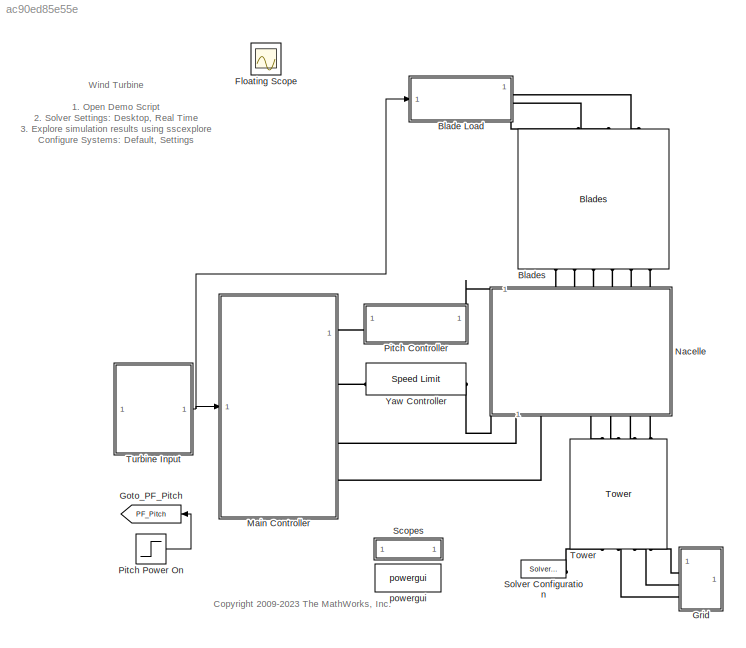
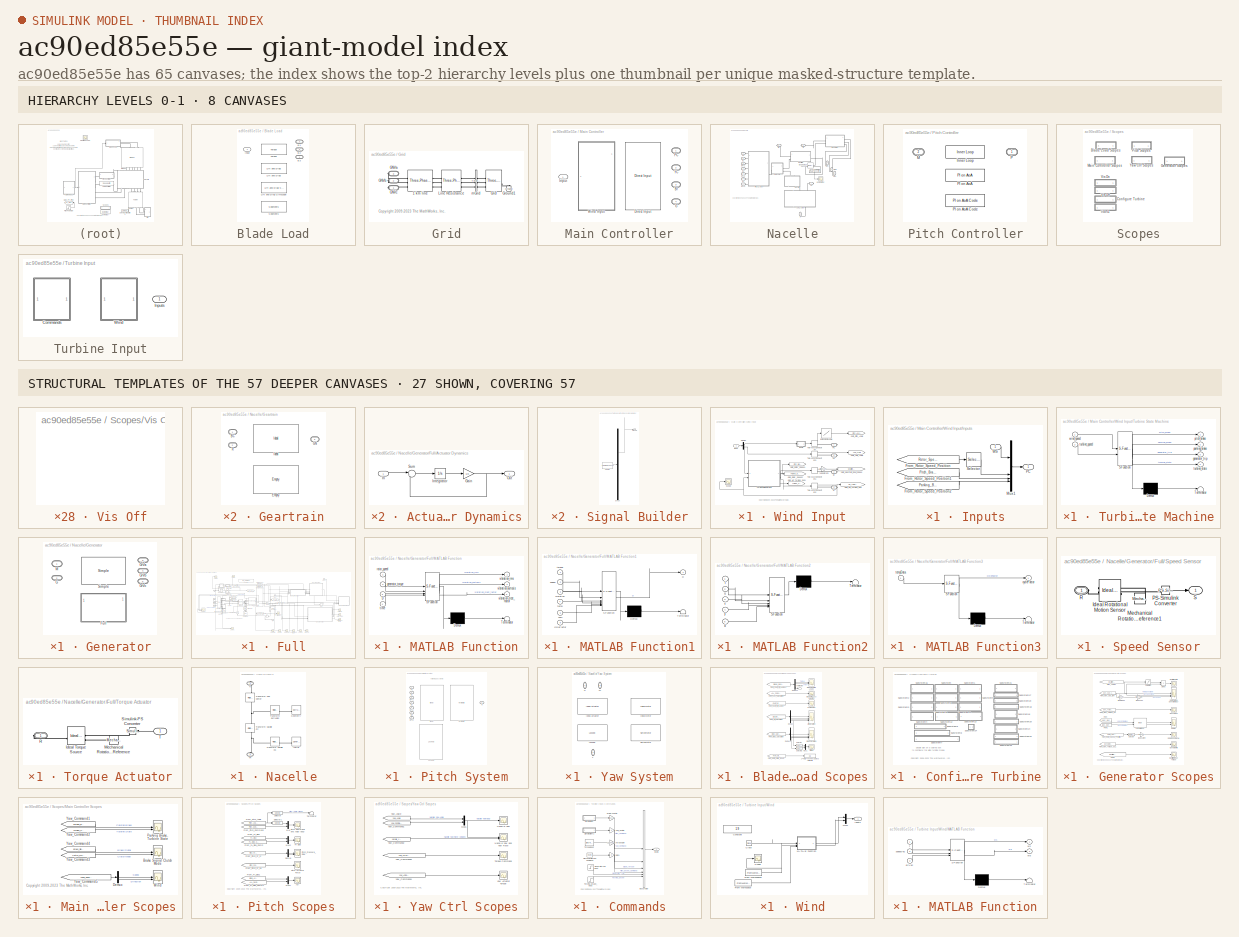
[diagram: thumbnail index - top-2 hierarchy levels (8 canvases) + 27 structural-template representatives of the remaining 57 canvases]
MODEL slx_ac90ed85e55e
KIND model
CONFIG AbsTol = 1e-2
CONFIG EnableMultiTasking = on
CONFIG FixedStep = 3600
CONFIG MaxStep = auto
CONFIG MinStep = auto
CONFIG PostLoadFcn = warning off Simulink:blocks:MatchingGotoNotFound\nwarning off Simulink:blocks:MatchingFromNotFound\nwarning('off','Simulink:SL_OutputNotConnected');\nwarning off Simulink:Engine:SaveWithParameterizedLinks_Warning\nwarning off Simulink:Engine:SaveWithDisabledLinks_Warning\nwarning('off','Simulink:fixpoint:fxpParameterPrecisionLoss');\nwarning off Simulink:blocks:DTConversionUncessary\nwarning off ne_sli:s...<+245ch>
CONFIG PreLoadFcn = warning off Simulink:Commands:LoadMdlParameterizedLink
CONFIG RelTol = 1e-2
CONFIG SampleTimeConstraint = Unconstrained
CONFIG SolverName = VariableStepAuto
CONFIG StartFcn = tic
CONFIG StartTime = 0.0
CONFIG StopFcn = Elapsed_Sim_Time = toc;\ndisp(['Elapsed time is ' num2str(Elapsed_Sim_Time)]);
CONFIG StopTime = 20000000
BLOCK [SubSystem] Blade Load
  AttributesFormatString = %<ActiveVariant>
  LabelModeActiveChoice = Lift_and_Drag
  Variant = on
  VariantControlMode = label
BLOCK [PMIOPort] Blade Load/B1
  Port = 3
  Side = Right
BLOCK [PMIOPort] Blade Load/B2
  Port = 2
  Side = Right
BLOCK [PMIOPort] Blade Load/B3
  Side = Right
BLOCK [Inport] Blade Load/Input
BLOCK [Reference] Blade Load/Lift and Drag  REF=Wind_Lib/Lift and Drag
  SourceBlock = Wind_Lib/Lift and Drag
BLOCK [Reference] Blade Load/Lift and Drag Simscape  REF=Wind_Lib/Lift and Drag Simscape
  SourceBlock = Wind_Lib/Lift and Drag Simscape
BLOCK [Reference] Blade Load/Segments  REF=Wind_Lib/Segments
  SourceBlock = Wind_Lib/Segments
BLOCK [Reference] Blade Load/Torque  REF=Wind_Lib/Torque
  SourceBlock = Wind_Lib/Torque
BLOCK [Reference] Blades  REF=Blades_Lib/Blades
  NameLocation = right
  SourceBlock = Blades_Lib/Blades
BLOCK [Scope] Floating Scope
  Floating = off
  IOType = viewer
  NumInputPorts = 1
  ScopeSpecificationString = Simulink.scopes.TimeScopeBlockCfg('CurrentConfiguration', extmgr.ConfigurationSet(extmgr.Configuration('Core','General UI',true),extmgr.Configuration('Core','Source UI',true),extmgr.Configuration('Sources','WiredSimulink',true,'DataLoggingSaveFormat','StructureWithTime','DataLoggingLimitDataPoints',true,'DataLoggingDecimation','1','DataLoggingDecimateData',true),extmgr.Configuration('Visuals','Tim...<+890ch>
BLOCK [Goto] Goto_PF_Pitch
  GotoTag = PF_Pitch
  NameLocation = top
  TagVisibility = global
BLOCK [SubSystem] Grid
  NameLocation = top
BLOCK [Reference] Grid/1 km line   REF=spsThreePhasePISectionLineLib/Three-Phase
PI Section Line
  AttributesFormatString = \n
  SourceBlock = spsThreePhasePISectionLineLib/Three-Phase\nPI Section Line
  SourceType = Three-Phase PI Section Line
BLOCK [PMIOPort] Grid/GNVa
  Port = 3
  Side = Right
BLOCK [PMIOPort] Grid/GNVb
  Port = 2
  Side = Right
BLOCK [PMIOPort] Grid/GNVc
  Side = Right
BLOCK [Reference] Grid/Grid  REF=spsThreePhaseProgrammableVoltageSourceLib/Three-Phase
Programmable
Voltage Source
  SourceBlock = spsThreePhaseProgrammableVoltageSourceLib/Three-Phase\nProgrammable\nVoltage Source
  SourceType = Three-Phase Programmable Voltage Source
BLOCK [Reference] Grid/Ground1  REF=spsGroundLib/Ground
  AttributesFormatString = \n
  NameLocation = right
  SourceBlock = spsGroundLib/Ground
  SourceType = Ground
BLOCK [Reference] Grid/Line Resistance  REF=spsThreePhaseMutualInductanceZ1Z0Lib/Three-Phase
Mutual Inductance
Z1-Z0
  AttributesFormatString = \n
  SourceBlock = spsThreePhaseMutualInductanceZ1Z0Lib/Three-Phase\nMutual Inductance\nZ1-Z0
  SourceType = Three-Phase Mutual Inductance Z1-Z0
BLOCK [Reference] Grid/mGrid  REF=spsThreePhaseVIMeasurementLib/Three-Phase
V-I Measurement
  SourceBlock = spsThreePhaseVIMeasurementLib/Three-Phase\nV-I Measurement
  SourceType = Three-Phase VI Measurement
BLOCK [SubSystem] Main Controller
  AttributesFormatString = %<ActiveVariant>
  LabelModeActiveChoice = Wind_Input
  Variant = on
  VariantControlMode = label
BLOCK [PMIOPort] Main Controller/Br
  Port = 3
  Side = Right
  Tag = PMCPort
BLOCK [Reference] Main Controller/Direct Input  REF=Main_Controller_Lib/Direct Input
  SourceBlock = Main_Controller_Lib/Direct Input
BLOCK [PMIOPort] Main Controller/G
  Port = 4
  Side = Right
  Tag = PMCPort
BLOCK [Inport] Main Controller/Input
BLOCK [PMIOPort] Main Controller/PC
  Side = Right
  Tag = PMCPort
BLOCK [SubSystem] Main Controller/Wind Input
  AncestorBlock = Main_Controller_Lib/Wind Input
  LibrarySourceBlock = Main_Controller_Lib/Wind Input
  VariantControl = Wind_Input
BLOCK [PMIOPort] Main Controller/Wind Input/Br
  Port = 3
  Side = Right
  Tag = PMCPort
BLOCK [Demux] Main Controller/Wind Input/Demux
  Outputs = 2
BLOCK [Lookup] Main Controller/Wind Input/Extension to Angle
  InputValues = Actuator_Lookup.extension
  SaturateOnIntegerOverflow = off
  Table = Actuator_Lookup.angle
BLOCK [PMIOPort] Main Controller/Wind Input/G
  Port = 4
  Side = Right
  Tag = PMCPort
BLOCK [Goto] Main Controller/Wind Input/Goto_Geartrain_Input_Speed
  GotoTag = Geartrain_Input_Speed
  TagVisibility = global
BLOCK [Goto] Main Controller/Wind Input/Goto_MC_Turbine_Spd
  GotoTag = MC_Turbine_Spd
  TagVisibility = global
BLOCK [Goto] Main Controller/Wind Input/Goto_MC_Turbine_Spd1
  GotoTag = Turbine_State
  TagVisibility = global
BLOCK [Goto] Main Controller/Wind Input/Goto_Pitch_Angle
  GotoTag = Pitch_Angle
  TagVisibility = global
BLOCK [Goto] Main Controller/Wind Input/Goto_Rotor_Speed1
  GotoTag = Pitch_Brake
  TagVisibility = global
BLOCK [Goto] Main Controller/Wind Input/Goto_Rotor_Speed2
  GotoTag = Parking_Brake
  TagVisibility = global
BLOCK [Goto] Main Controller/Wind Input/Goto_Yaw_Angle
  GotoTag = Yaw_Angle
  TagVisibility = global
BLOCK [Inport] Main Controller/Wind Input/Input
BLOCK [SubSystem] Main Controller/Wind Input/Inputs
BLOCK [From] Main Controller/Wind Input/Inputs/From_Rotor_Speed_Position
  CloseFcn = tagdialog Close
  GotoTag = Rotor_Speed_Position
  TagVisibility = global
BLOCK [From] Main Controller/Wind Input/Inputs/From_Rotor_Speed_Position1
  CloseFcn = tagdialog Close
  GotoTag = Pitch_Brake
  TagVisibility = global
BLOCK [From] Main Controller/Wind Input/Inputs/From_Rotor_Speed_Position2
  CloseFcn = tagdialog Close
  GotoTag = Parking_Brake
  TagVisibility = global
BLOCK [Mux] Main Controller/Wind Input/Inputs/Mux1
  DisplayOption = bar
BLOCK [Outport] Main Controller/Wind Input/Inputs/PC
  VectorParamsAs1DForOutWhenUnconnected = off
BLOCK [Selector] Main Controller/Wind Input/Inputs/Selector
  IndexOptions = Index vector (dialog)
  Indices = [2]
  InputPortWidth = 2
  OutputSizes = 1
BLOCK [Inport] Main Controller/Wind Input/Inputs/WS
BLOCK [PMIOPort] Main Controller/Wind Input/PC
  Side = Right
  Tag = PMCPort
BLOCK [Scope] Main Controller/Wind Input/Scope
  Floating = off
  NumInputPorts = 1
  ScopeSpecificationString = Simulink.scopes.TimeScopeBlockCfg('CurrentConfiguration', extmgr.ConfigurationSet(extmgr.Configuration('Core','General UI',true),extmgr.Configuration('Core','Source UI',true),extmgr.Configuration('Sources','WiredSimulink',true,'DataLoggingVariableName','ScopeData1'),extmgr.Configuration('Visuals','Time Domain',true,'SerializedDisplays',{struct('MinYLimReal','1186.08794','MaxYLimReal','1224.49671',...<+1444ch>
BLOCK [SubSystem] Main Controller/Wind Input/Turbine State Machine
  AncestorBlock = Turbine_State_Machine_Lib/Turbine State Machine
  ErrorFcn = Stateflow.Translate.translate
  LibrarySourceBlock = Turbine_State_Machine_Lib/Turbine State Machine
  PermitHierarchicalResolution = ExplicitOnly
  SFBlockType = Chart
  TreatAsAtomicUnit = on
BLOCK [Demux] Main Controller/Wind Input/Turbine State Machine/ Demux 
  Outputs = 1
BLOCK [S-Function] Main Controller/Wind Input/Turbine State Machine/ SFunction 
  EnableBusSupport = on
  FunctionName = sf_sfun
  PortCounts = [2 5]
  SFcnIsStateOwnerBlock = off
  SFunctionDeploymentMode = off
  Tag = Stateflow S-Function 6
BLOCK [Terminator] Main Controller/Wind Input/Turbine State Machine/ Terminator 
BLOCK [Outport] Main Controller/Wind Input/Turbine State Machine/generator_trip
  Port = 3
  VectorParamsAs1DForOutWhenUnconnected = off
BLOCK [Outport] Main Controller/Wind Input/Turbine State Machine/parking_brake
  Port = 2
  VectorParamsAs1DForOutWhenUnconnected = off
BLOCK [Outport] Main Controller/Wind Input/Turbine State Machine/pitch_brake
  VectorParamsAs1DForOutWhenUnconnected = off
BLOCK [Inport] Main Controller/Wind Input/Turbine State Machine/turbine_speed
  Port = 2
BLOCK [Outport] Main Controller/Wind Input/Turbine State Machine/turbine_state
  Port = 4
  VectorParamsAs1DForOutWhenUnconnected = off
BLOCK [Inport] Main Controller/Wind Input/Turbine State Machine/wind_speed
BLOCK [TwoWayConnection] Main Controller/Wind Input/Two-Way Connection
BLOCK [TwoWayConnection] Main Controller/Wind Input/Two-Way Connection1
BLOCK [TwoWayConnection] Main Controller/Wind Input/Two-Way Connection2
  NameLocation = top
BLOCK [TwoWayConnection] Main Controller/Wind Input/Two-Way Connection3
BLOCK [PMIOPort] Main Controller/Wind Input/YC
  Port = 2
  Side = Right
  Tag = PMCPort
BLOCK [Gain] Main Controller/Wind Input/radps to rpm
  Gain = radps2rpm
  NameLocation = top
BLOCK [PMIOPort] Main Controller/YC
  Port = 2
  Side = Right
  Tag = PMCPort
BLOCK [SubSystem] Nacelle
  NameLocation = right
BLOCK [PMIOPort] Nacelle/B1
  Port = 2
  Side = Left
  Tag = PMCPort
BLOCK [PMIOPort] Nacelle/B2
  Port = 4
  Side = Left
  Tag = PMCPort
BLOCK [PMIOPort] Nacelle/B3
  Port = 6
  Side = Left
  Tag = PMCPort
BLOCK [PMIOPort] Nacelle/BPA1
  Port = 3
  Side = Left
  Tag = PMCPort
BLOCK [PMIOPort] Nacelle/BPA2
  Port = 5
  Side = Left
  Tag = PMCPort
BLOCK [PMIOPort] Nacelle/BPA3
  Port = 12
  Side = Left
  Tag = PMCPort
BLOCK [PMIOPort] Nacelle/Br
  Port = 8
  Side = Right
  Tag = PMCPort
BLOCK [PMIOPort] Nacelle/G
  Port = 9
  Side = Right
  Tag = PMCPort
BLOCK [SubSystem] Nacelle/Geartrain
  AttributesFormatString = %<ActiveVariant>
  LabelModeActiveChoice = Ideal
  Variant = on
  VariantControlMode = label
BLOCK [PMIOPort] Nacelle/Geartrain/BC
  Side = Left
  Tag = PMCPort
BLOCK [Reference] Nacelle/Geartrain/Empty  REF=Geartrain_Lib/Empty
  SourceBlock = Geartrain_Lib/Empty
BLOCK [PMIOPort] Nacelle/Geartrain/GN
  Port = 3
  Side = Right
  Tag = PMCPort
BLOCK [Reference] Nacelle/Geartrain/Ideal  REF=Geartrain_Lib/Ideal
  SourceBlock = Geartrain_Lib/Ideal
BLOCK [PMIOPort] Nacelle/Geartrain/R
  Port = 2
  Side = Left
  Tag = PMCPort
BLOCK [SubSystem] Nacelle/Generator
  AttributesFormatString = %<ActiveVariant>
  LabelModeActiveChoice = Full
  Variant = on
  VariantControlMode = label
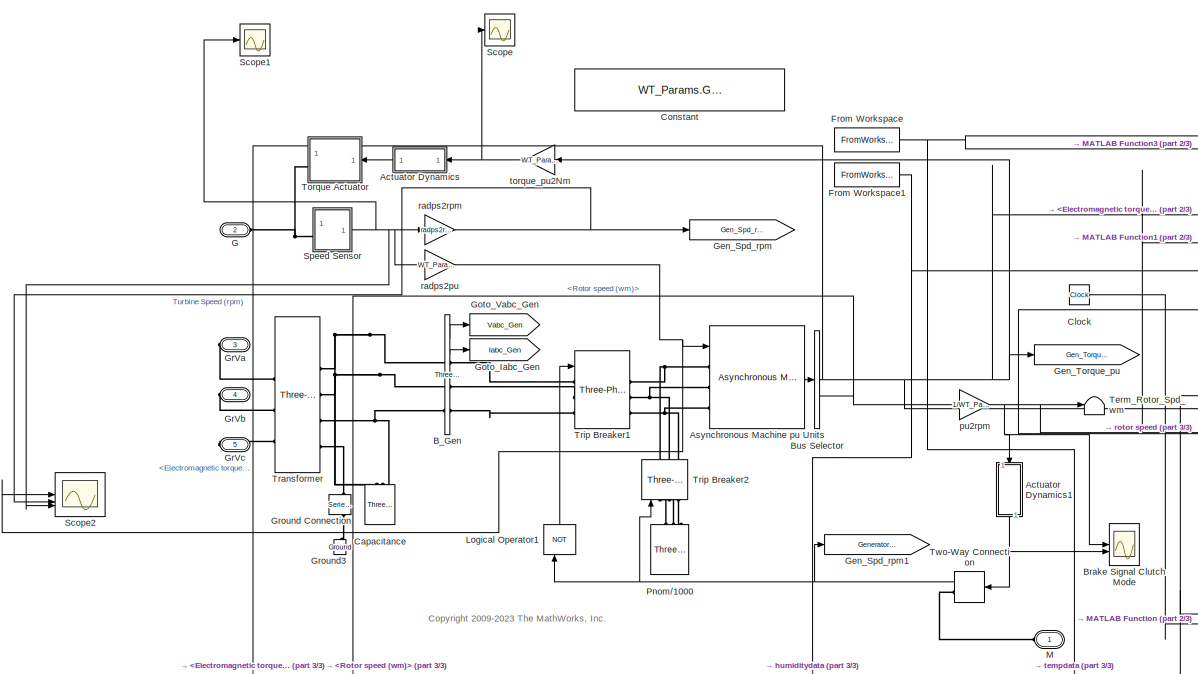
[diagram: Nacelle/Generator/Full - part 1/3, left side, full height]
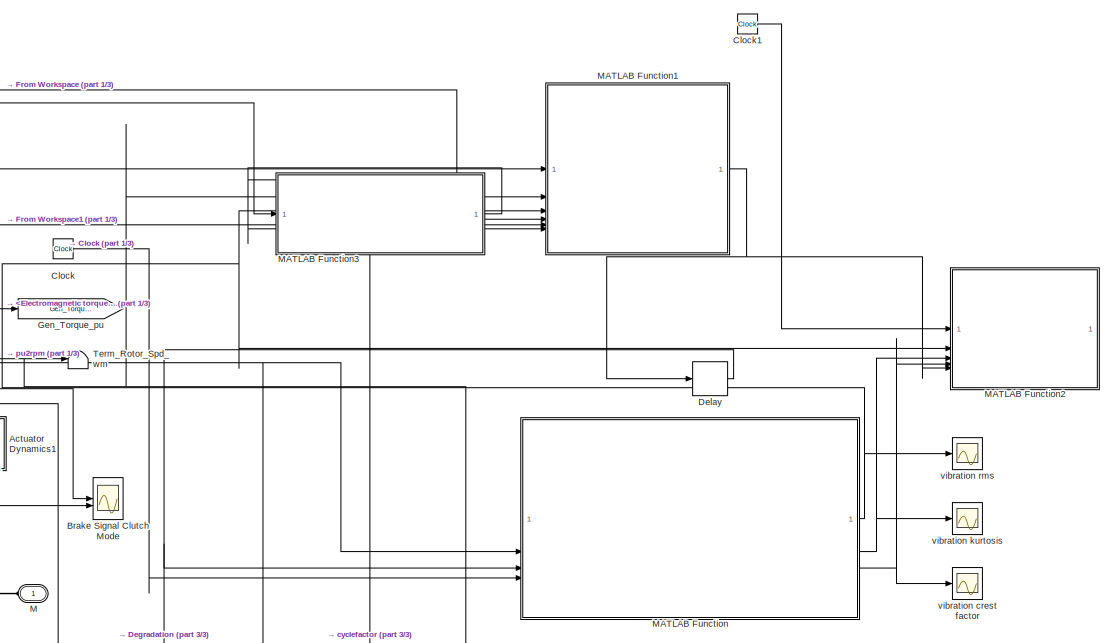
[diagram: Nacelle/Generator/Full - part 2/3, right side, full height]
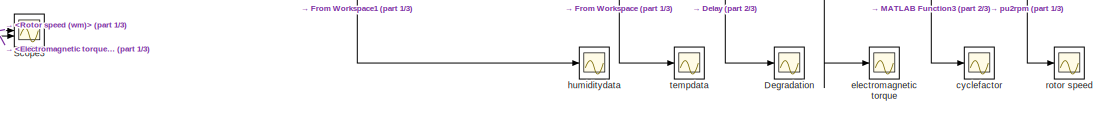
[diagram: Nacelle/Generator/Full - part 3/3, bottom center region]
BLOCK [SubSystem] Nacelle/Generator/Full
  AncestorBlock = Generator_Lib/Full
  LibrarySourceBlock = Generator_Lib/Full
  VariantControl = Full
BLOCK [SubSystem] Nacelle/Generator/Full/Actuator Dynamics
  NameLocation = top
BLOCK [Gain] Nacelle/Generator/Full/Actuator Dynamics/Gain
  Gain = 1/b
BLOCK [Inport] Nacelle/Generator/Full/Actuator Dynamics/In
BLOCK [Integrator] Nacelle/Generator/Full/Actuator Dynamics/Integrator
  InitialCondition = x_initial
BLOCK [Outport] Nacelle/Generator/Full/Actuator Dynamics/Out
  VectorParamsAs1DForOutWhenUnconnected = off
BLOCK [Sum] Nacelle/Generator/Full/Actuator Dynamics/Sum
  InputSameDT = on
  Inputs = |+-
  OutDataTypeStr = Inherit: Same as first input
  SaturateOnIntegerOverflow = on
BLOCK [SubSystem] Nacelle/Generator/Full/Actuator Dynamics1
  NameLocation = left
BLOCK [Gain] Nacelle/Generator/Full/Actuator Dynamics1/Gain
  Gain = 1/b
BLOCK [Inport] Nacelle/Generator/Full/Actuator Dynamics1/In
BLOCK [Integrator] Nacelle/Generator/Full/Actuator Dynamics1/Integrator
  InitialCondition = x_initial
BLOCK [Outport] Nacelle/Generator/Full/Actuator Dynamics1/Out
  VectorParamsAs1DForOutWhenUnconnected = off
BLOCK [Sum] Nacelle/Generator/Full/Actuator Dynamics1/Sum
  InputSameDT = on
  Inputs = |+-
  OutDataTypeStr = Inherit: Same as first input
  SaturateOnIntegerOverflow = on
BLOCK [Reference] Nacelle/Generator/Full/Asynchronous Machine pu Units  REF=spsAsynchronousMachinepuUnitsLib/Asynchronous Machine
pu Units
  SourceBlock = spsAsynchronousMachinepuUnitsLib/Asynchronous Machine\npu Units
  SourceType = Asynchronous Machine
BLOCK [Reference] Nacelle/Generator/Full/B_Gen  REF=spsThreePhaseVIMeasurementLib/Three-Phase
V-I Measurement
  SourceBlock = spsThreePhaseVIMeasurementLib/Three-Phase\nV-I Measurement
  SourceType = Three-Phase VI Measurement
BLOCK [Scope] Nacelle/Generator/Full/Brake Signal Clutch Mode
  Floating = off
  NumInputPorts = 2
  ScopeSpecificationString = Simulink.scopes.TimeScopeBlockCfg('CurrentConfiguration', extmgr.ConfigurationSet(extmgr.Configuration('Core','General UI',true),extmgr.Configuration('Core','Source UI',true),extmgr.Configuration('Sources','WiredSimulink',true,'DataLoggingVariableName','ScopeData12','DataLoggingSaveFormat','StructureWithTime','DataLoggingDecimation','1','DataLoggingDecimateData',true),extmgr.Configuration('Visuals...<+2368ch>
BLOCK [BusSelector] Nacelle/Generator/Full/Bus Selector
  OutputSignals = Mechanical.Electromagnetic torque Te (pu),Mechanical.Rotor speed (wm)
BLOCK [Reference] Nacelle/Generator/Full/Capacitance  REF=spsThreePhaseSeriesRLCLoadLib/Three-Phase
Series RLC Load
  AttributesFormatString = \n
  NameLocation = right
  SourceBlock = spsThreePhaseSeriesRLCLoadLib/Three-Phase\nSeries RLC Load
  SourceType = Three-Phase Series RLC Load
BLOCK [Clock] Nacelle/Generator/Full/Clock
BLOCK [Clock] Nacelle/Generator/Full/Clock1
BLOCK [Constant] Nacelle/Generator/Full/Constant
  Value = WT_Params.Generator.torque_pu2Nm
BLOCK [Scope] Nacelle/Generator/Full/Degradation
  Floating = off
  NumInputPorts = 1
  ScopeSpecificationString = Simulink.scopes.TimeScopeBlockCfg('CurrentConfiguration', extmgr.ConfigurationSet(extmgr.Configuration('Core','General UI',true),extmgr.Configuration('Core','Source UI',true),extmgr.Configuration('Sources','WiredSimulink',true,'DataLoggingVariableName','ScopeData1'),extmgr.Configuration('Visuals','Time Domain',true,'SerializedDisplays',{struct('MinYLimReal','-0.00012','MaxYLimReal','0.00112','YLab...<+1394ch>
BLOCK [Delay] Nacelle/Generator/Full/Delay
  InputPortMap = u0
  SampleTime = 3600
BLOCK [FromWorkspace] Nacelle/Generator/Full/From Workspace
  VariableName = tempData
BLOCK [FromWorkspace] Nacelle/Generator/Full/From Workspace1
  VariableName = humidityData
BLOCK [PMIOPort] Nacelle/Generator/Full/G
  NameLocation = top
  Port = 2
  Side = Left
BLOCK [Goto] Nacelle/Generator/Full/Gen_Spd_rpm
  GotoTag = Gen_Spd_rpm
  TagVisibility = global
BLOCK [Goto] Nacelle/Generator/Full/Gen_Spd_rpm1
  GotoTag = Generator_Trip
  TagVisibility = global
BLOCK [Goto] Nacelle/Generator/Full/Gen_Torque_pu
  GotoTag = Gen_Torque_pu
  TagVisibility = global
BLOCK [Goto] Nacelle/Generator/Full/Goto_Iabc_Gen
  GotoTag = Iabc_Gen
  TagVisibility = global
BLOCK [Goto] Nacelle/Generator/Full/Goto_Vabc_Gen
  GotoTag = Vabc_Gen
  TagVisibility = global
BLOCK [PMIOPort] Nacelle/Generator/Full/GrVa
  Port = 3
  Side = Right
BLOCK [PMIOPort] Nacelle/Generator/Full/GrVb
  Port = 4
  Side = Right
BLOCK [PMIOPort] Nacelle/Generator/Full/GrVc
  Port = 5
  Side = Right
BLOCK [Reference] Nacelle/Generator/Full/Ground Connection  REF=spsSeriesRLCBranchLib/Series RLC Branch
  NameLocation = left
  SourceBlock = spsSeriesRLCBranchLib/Series RLC Branch
  SourceType = Series RLC Branch
BLOCK [Reference] Nacelle/Generator/Full/Ground3  REF=spsGroundLib/Ground
  AttributesFormatString = \n
  NameLocation = right
  SourceBlock = spsGroundLib/Ground
  SourceType = Ground
BLOCK [Logic] Nacelle/Generator/Full/Logical Operator1
  AllPortsSameDT = off
  NameLocation = right
  Operator = NOT
  OutDataTypeStr = float('double')
  SampleTime = 0
BLOCK [PMIOPort] Nacelle/Generator/Full/M
  Side = Left
  Tag = PMCPort
BLOCK [SubSystem] Nacelle/Generator/Full/MATLAB Function
  ErrorFcn = Stateflow.Translate.translate
  LibrarySourceBlock = simulink/User-Defined\nFunctions/MATLAB Function
  PermitHierarchicalResolution = ExplicitOnly
  SFBlockType = MATLAB Function
  TreatAsAtomicUnit = on
BLOCK [Demux] Nacelle/Generator/Full/MATLAB Function/ Demux 
  Outputs = 1
BLOCK [S-Function] Nacelle/Generator/Full/MATLAB Function/ SFunction 
  EnableBusSupport = on
  FunctionName = sf_sfun
  PortCounts = [4 4]
  SFcnIsStateOwnerBlock = off
  SFunctionDeploymentMode = off
  Tag = Stateflow S-Function 1
BLOCK [Terminator] Nacelle/Generator/Full/MATLAB Function/ Terminator 
BLOCK [Inport] Nacelle/Generator/Full/MATLAB Function/D
  Port = 3
BLOCK [Inport] Nacelle/Generator/Full/MATLAB Function/generator_torque
  Port = 2
BLOCK [Inport] Nacelle/Generator/Full/MATLAB Function/rotor_speed
BLOCK [Inport] Nacelle/Generator/Full/MATLAB Function/time
  Port = 4
BLOCK [Outport] Nacelle/Generator/Full/MATLAB Function/vibration_crest_factor
  Port = 3
BLOCK [Outport] Nacelle/Generator/Full/MATLAB Function/vibration_kurtosis
  Port = 2
BLOCK [Outport] Nacelle/Generator/Full/MATLAB Function/vibration_rms
BLOCK [SubSystem] Nacelle/Generator/Full/MATLAB Function1
  ErrorFcn = Stateflow.Translate.translate
  LibrarySourceBlock = simulink/User-Defined\nFunctions/MATLAB Function
  PermitHierarchicalResolution = ExplicitOnly
  SFBlockType = MATLAB Function
  TreatAsAtomicUnit = on
BLOCK [Demux] Nacelle/Generator/Full/MATLAB Function1/ Demux 
  Outputs = 1
BLOCK [S-Function] Nacelle/Generator/Full/MATLAB Function1/ SFunction 
  EnableBusSupport = on
  FunctionName = sf_sfun
  PortCounts = [6 2]
  SFcnIsStateOwnerBlock = off
  SFunctionDeploymentMode = off
  Tag = Stateflow S-Function 3
BLOCK [Terminator] Nacelle/Generator/Full/MATLAB Function1/ Terminator 
BLOCK [Outport] Nacelle/Generator/Full/MATLAB Function1/D
BLOCK [Inport] Nacelle/Generator/Full/MATLAB Function1/cycleFactor
  Port = 6
BLOCK [Inport] Nacelle/Generator/Full/MATLAB Function1/hum
  Port = 5
BLOCK [Inport] Nacelle/Generator/Full/MATLAB Function1/speed
  Port = 2
BLOCK [Inport] Nacelle/Generator/Full/MATLAB Function1/temp
  Port = 4
BLOCK [Inport] Nacelle/Generator/Full/MATLAB Function1/torque
BLOCK [Inport] Nacelle/Generator/Full/MATLAB Function1/vibration
  Port = 3
BLOCK [SubSystem] Nacelle/Generator/Full/MATLAB Function2
  ErrorFcn = Stateflow.Translate.translate
  LibrarySourceBlock = simulink/User-Defined\nFunctions/MATLAB Function
  PermitHierarchicalResolution = ExplicitOnly
  SFBlockType = MATLAB Function
  TreatAsAtomicUnit = on
BLOCK [Demux] Nacelle/Generator/Full/MATLAB Function2/ Demux 
  Outputs = 1
BLOCK [S-Function] Nacelle/Generator/Full/MATLAB Function2/ SFunction 
  EnableBusSupport = on
  FunctionName = sf_sfun
  PortCounts = [5 1]
  SFcnIsStateOwnerBlock = off
  SFunctionDeploymentMode = off
  Tag = Stateflow S-Function 4
BLOCK [Terminator] Nacelle/Generator/Full/MATLAB Function2/ Terminator 
BLOCK [Inport] Nacelle/Generator/Full/MATLAB Function2/d
  Port = 5
BLOCK [Inport] Nacelle/Generator/Full/MATLAB Function2/t
BLOCK [Inport] Nacelle/Generator/Full/MATLAB Function2/u
  Port = 2
BLOCK [Inport] Nacelle/Generator/Full/MATLAB Function2/v
  Port = 3
BLOCK [Inport] Nacelle/Generator/Full/MATLAB Function2/y
  Port = 4
BLOCK [SubSystem] Nacelle/Generator/Full/MATLAB Function3
  ErrorFcn = Stateflow.Translate.translate
  LibrarySourceBlock = simulink/User-Defined\nFunctions/MATLAB Function
  PermitHierarchicalResolution = ExplicitOnly
  SFBlockType = MATLAB Function
  TreatAsAtomicUnit = on
BLOCK [Demux] Nacelle/Generator/Full/MATLAB Function3/ Demux 
  Outputs = 1
BLOCK [S-Function] Nacelle/Generator/Full/MATLAB Function3/ SFunction 
  EnableBusSupport = on
  FunctionName = sf_sfun
  PortCounts = [1 2]
  SFcnIsStateOwnerBlock = off
  SFunctionDeploymentMode = off
  Tag = Stateflow S-Function 5
BLOCK [Terminator] Nacelle/Generator/Full/MATLAB Function3/ Terminator 
BLOCK [Outport] Nacelle/Generator/Full/MATLAB Function3/cycleFactor
BLOCK [Inport] Nacelle/Generator/Full/MATLAB Function3/tempData
BLOCK [Reference] Nacelle/Generator/Full/Pnom//1000  REF=spsThreePhaseSeriesRLCLoadLib/Three-Phase
Series RLC Load
  AttributesFormatString = \n
  NameLocation = right
  SourceBlock = spsThreePhaseSeriesRLCLoadLib/Three-Phase\nSeries RLC Load
  SourceType = Three-Phase Series RLC Load
BLOCK [Scope] Nacelle/Generator/Full/Scope
  Floating = off
  NumInputPorts = 1
  ScopeSpecificationString = Simulink.scopes.TimeScopeBlockCfg('CurrentConfiguration', extmgr.ConfigurationSet(extmgr.Configuration('Core','General UI',true),extmgr.Configuration('Core','Source UI',true),extmgr.Configuration('Sources','WiredSimulink',true,'DataLoggingVariableName','ScopeData1'),extmgr.Configuration('Visuals','Time Domain',true,'SerializedDisplays',{struct('MinYLimReal','-21169.95229','MaxYLimReal','5734.68783...<+1472ch>
BLOCK [Scope] Nacelle/Generator/Full/Scope1
  Floating = off
  NumInputPorts = 1
  ScopeSpecificationString = Simulink.scopes.TimeScopeBlockCfg('CurrentConfiguration', extmgr.ConfigurationSet(extmgr.Configuration('Core','General UI',true),extmgr.Configuration('Core','Source UI',true),extmgr.Configuration('Sources','WiredSimulink',true,'DataLoggingVariableName','ScopeData2'),extmgr.Configuration('Visuals','Time Domain',true,'SerializedDisplays',{struct('MinYLimReal','123.0047','MaxYLimReal','136.16477','YL...<+1452ch>
BLOCK [Scope] Nacelle/Generator/Full/Scope2
  Floating = off
  NumInputPorts = 3
  ScopeSpecificationString = Simulink.scopes.TimeScopeBlockCfg('CurrentConfiguration', extmgr.ConfigurationSet(extmgr.Configuration('Core','General UI',true),extmgr.Configuration('Core','Source UI',true),extmgr.Configuration('Sources','WiredSimulink',true,'DataLoggingVariableName','ScopeData3'),extmgr.Configuration('Visuals','Time Domain',true,'SerializedDisplays',{struct('MinYLimReal','-1.00000','MaxYLimReal','1.00000','YLab...<+1452ch>
BLOCK [Scope] Nacelle/Generator/Full/Scope3
  Floating = off
  NumInputPorts = 2
  ScopeSpecificationString = Simulink.scopes.TimeScopeBlockCfg('CurrentConfiguration', extmgr.ConfigurationSet(extmgr.Configuration('Core','General UI',true),extmgr.Configuration('Core','Source UI',true),extmgr.Configuration('Sources','WiredSimulink',true,'DataLoggingVariableName','ScopeData1'),extmgr.Configuration('Visuals','Time Domain',true,'SerializedDisplays',{struct('MinYLimReal','-0.92379','MaxYLimReal','-0.90128','YLa...<+1485ch>
BLOCK [SubSystem] Nacelle/Generator/Full/Speed Sensor
BLOCK [Reference] Nacelle/Generator/Full/Speed Sensor/Ideal Rotational Motion Sensor  REF=fl_lib/Mechanical/Mechanical Sensors/Ideal Rotational
Motion Sensor
  SourceBlock = fl_lib/Mechanical/Mechanical Sensors/Ideal Rotational\nMotion Sensor
  SourceType = Ideal Rotational\nMotion Sensor
BLOCK [Reference] Nacelle/Generator/Full/Speed Sensor/Mechanical Rotational Reference1  REF=fl_lib/Mechanical/Rotational Elements/Mechanical
Rotational Reference
  SourceBlock = fl_lib/Mechanical/Rotational Elements/Mechanical\nRotational Reference
  SourceType = Mechanical\nRotational Reference
BLOCK [Reference] Nacelle/Generator/Full/Speed Sensor/PS-Simulink Converter  REF=nesl_utility/PS-Simulink
Converter
  SourceBlock = nesl_utility/PS-Simulink\nConverter
  SourceType = PS-Simulink\nConverter
BLOCK [PMIOPort] Nacelle/Generator/Full/Speed Sensor/R
  Side = Left
BLOCK [Outport] Nacelle/Generator/Full/Speed Sensor/S
  NameLocation = top
  VectorParamsAs1DForOutWhenUnconnected = off
BLOCK [Terminator] Nacelle/Generator/Full/Term_Rotor_Spd_wm
BLOCK [SubSystem] Nacelle/Generator/Full/Torque Actuator
BLOCK [Reference] Nacelle/Generator/Full/Torque Actuator/Ideal Torque Source  REF=fl_lib/Mechanical/Mechanical Sources/Ideal Torque Source
  SourceBlock = fl_lib/Mechanical/Mechanical Sources/Ideal Torque Source
  SourceType = Ideal Torque Source
BLOCK [Reference] Nacelle/Generator/Full/Torque Actuator/Mechanical Rotational Reference  REF=fl_lib/Mechanical/Rotational Elements/Mechanical
Rotational Reference
  SourceBlock = fl_lib/Mechanical/Rotational Elements/Mechanical\nRotational Reference
  SourceType = Mechanical\nRotational Reference
BLOCK [PMIOPort] Nacelle/Generator/Full/Torque Actuator/R
  Side = Right
BLOCK [Reference] Nacelle/Generator/Full/Torque Actuator/Simulink-PS Converter  REF=nesl_utility/Simulink-PS
Converter
  NameLocation = top
  SourceBlock = nesl_utility/Simulink-PS\nConverter
  SourceType = Simulink-PS\nConverter
BLOCK [Inport] Nacelle/Generator/Full/Torque Actuator/T
BLOCK [Reference] Nacelle/Generator/Full/Transformer  REF=spsThreePhaseTransformerTwoWindingsLib/Three-Phase
Transformer
(Two Windings)
  AttributesFormatString = \n
  SourceBlock = spsThreePhaseTransformerTwoWindingsLib/Three-Phase\nTransformer\n(Two Windings)
  SourceType = Three-Phase Transformer (Two Windings)
BLOCK [Reference] Nacelle/Generator/Full/Trip Breaker1  REF=spsThreePhaseBreakerLib/Three-Phase Breaker
  SourceBlock = spsThreePhaseBreakerLib/Three-Phase Breaker
  SourceType = Three-Phase Breaker
BLOCK [Reference] Nacelle/Generator/Full/Trip Breaker2  REF=spsThreePhaseBreakerLib/Three-Phase Breaker
  NameLocation = right
  SourceBlock = spsThreePhaseBreakerLib/Three-Phase Breaker
  SourceType = Three-Phase Breaker
BLOCK [TwoWayConnection] Nacelle/Generator/Full/Two-Way Connection
BLOCK [Scope] Nacelle/Generator/Full/cyclefactor
  Floating = off
  NumInputPorts = 1
  ScopeSpecificationString = Simulink.scopes.TimeScopeBlockCfg('CurrentConfiguration', extmgr.ConfigurationSet(extmgr.Configuration('Core','General UI',true),extmgr.Configuration('Core','Source UI',true),extmgr.Configuration('Sources','WiredSimulink',true,'DataLoggingVariableName','ScopeData3'),extmgr.Configuration('Visuals','Time Domain',true),extmgr.Configuration('Tools','Plot Navigation',true),extmgr.Configuration('Tools',...<+58ch>
BLOCK [Scope] Nacelle/Generator/Full/electromagnetic torque
  Floating = off
  NumInputPorts = 1
  ScopeSpecificationString = Simulink.scopes.TimeScopeBlockCfg('CurrentConfiguration', extmgr.ConfigurationSet(extmgr.Configuration('Core','General UI',true),extmgr.Configuration('Core','Source UI',true),extmgr.Configuration('Sources','WiredSimulink',true,'DataLoggingVariableName','ScopeData2'),extmgr.Configuration('Visuals','Time Domain',true,'SerializedDisplays',{struct('MinYLimReal','-0.96253','MaxYLimReal','0.36232','YLab...<+1464ch>
BLOCK [Scope] Nacelle/Generator/Full/humiditydata
  Floating = off
  NumInputPorts = 1
  ScopeSpecificationString = Simulink.scopes.TimeScopeBlockCfg('CurrentConfiguration', extmgr.ConfigurationSet(extmgr.Configuration('Core','General UI',true),extmgr.Configuration('Core','Source UI',true),extmgr.Configuration('Sources','WiredSimulink',true,'DataLoggingVariableName','ScopeData9'),extmgr.Configuration('Visuals','Time Domain',true,'SerializedDisplays',{struct('MinYLimReal','89.2671','MaxYLimReal','89.51395','YLab...<+1376ch>
BLOCK [Gain] Nacelle/Generator/Full/pu2rpm
  Gain = 1/WT_Params.Generator.radps2pu*radps2rpm
BLOCK [Gain] Nacelle/Generator/Full/radps2pu
  Gain = WT_Params.Generator.radps2pu
BLOCK [Gain] Nacelle/Generator/Full/radps2rpm
  Gain = radps2rpm
  NameLocation = top
BLOCK [Scope] Nacelle/Generator/Full/rotor speed
  Floating = off
  NumInputPorts = 1
  ScopeSpecificationString = Simulink.scopes.TimeScopeBlockCfg('CurrentConfiguration', extmgr.ConfigurationSet(extmgr.Configuration('Core','General UI',true),extmgr.Configuration('Core','Source UI',true),extmgr.Configuration('Sources','WiredSimulink',true,'DataLoggingVariableName','ScopeData4'),extmgr.Configuration('Visuals','Time Domain',true,'SerializedDisplays',{struct('MinYLimReal','-150.77461','MaxYLimReal','1356.9715','...<+1451ch>
BLOCK [Scope] Nacelle/Generator/Full/tempdata
  Floating = off
  NumInputPorts = 1
  ScopeSpecificationString = Simulink.scopes.TimeScopeBlockCfg('CurrentConfiguration', extmgr.ConfigurationSet(extmgr.Configuration('Core','General UI',true),extmgr.Configuration('Core','Source UI',true),extmgr.Configuration('Sources','WiredSimulink',true,'DataLoggingVariableName','ScopeData8'),extmgr.Configuration('Visuals','Time Domain',true,'SerializedDisplays',{struct('MinYLimReal','8.92187','MaxYLimReal','22.14361','YLab...<+1427ch>
BLOCK [Gain] Nacelle/Generator/Full/torque_pu2Nm
  Gain = WT_Params.Generator.torque_pu2Nm
  NameLocation = top
BLOCK [Scope] Nacelle/Generator/Full/vibration crest factor
  Floating = off
  NameLocation = right
  NumInputPorts = 1
  ScopeSpecificationString = Simulink.scopes.TimeScopeBlockCfg('CurrentConfiguration', extmgr.ConfigurationSet(extmgr.Configuration('Core','General UI',true),extmgr.Configuration('Core','Source UI',true),extmgr.Configuration('Sources','WiredSimulink',true,'DataLoggingVariableName','ScopeData7'),extmgr.Configuration('Visuals','Time Domain',true),extmgr.Configuration('Tools','Plot Navigation',true),extmgr.Configuration('Tools',...<+40ch>
BLOCK [Scope] Nacelle/Generator/Full/vibration kurtosis
  Floating = off
  NameLocation = right
  NumInputPorts = 1
  ScopeSpecificationString = Simulink.scopes.TimeScopeBlockCfg('CurrentConfiguration', extmgr.ConfigurationSet(extmgr.Configuration('Core','General UI',true),extmgr.Configuration('Core','Source UI',true),extmgr.Configuration('Sources','WiredSimulink',true,'DataLoggingVariableName','ScopeData6'),extmgr.Configuration('Visuals','Time Domain',true),extmgr.Configuration('Tools','Plot Navigation',true),extmgr.Configuration('Tools',...<+40ch>
BLOCK [Scope] Nacelle/Generator/Full/vibration rms
  Floating = off
  NameLocation = right
  NumInputPorts = 1
  ScopeSpecificationString = Simulink.scopes.TimeScopeBlockCfg('CurrentConfiguration', extmgr.ConfigurationSet(extmgr.Configuration('Core','General UI',true),extmgr.Configuration('Core','Source UI',true),extmgr.Configuration('Sources','WiredSimulink',true,'DataLoggingVariableName','ScopeData5'),extmgr.Configuration('Visuals','Time Domain',true,'SerializedDisplays',{struct('MinYLimReal','-0.04441','MaxYLimReal','0.40257','YLab...<+1416ch>
BLOCK [PMIOPort] Nacelle/Generator/G
  Port = 2
  Side = Left
BLOCK [PMIOPort] Nacelle/Generator/GrVa
  Port = 3
  Side = Right
BLOCK [PMIOPort] Nacelle/Generator/GrVb
  Port = 4
  Side = Right
BLOCK [PMIOPort] Nacelle/Generator/GrVc
  Port = 5
  Side = Right
BLOCK [PMIOPort] Nacelle/Generator/M
  NameLocation = top
  Side = Left
  Tag = PMCPort
BLOCK [Reference] Nacelle/Generator/Simple  REF=Generator_Lib/Simple
  SourceBlock = Generator_Lib/Simple
BLOCK [PMIOPort] Nacelle/GrVa
  NameLocation = left
  Port = 11
  Side = Right
  Tag = PMCPort
BLOCK [PMIOPort] Nacelle/GrVb
  NameLocation = left
  Port = 13
  Side = Right
  Tag = PMCPort
BLOCK [PMIOPort] Nacelle/GrVc
  NameLocation = left
  Port = 14
  Side = Right
  Tag = PMCPort
BLOCK [SubSystem] Nacelle/Hub Axis
  AttributesFormatString = %<ActiveVariant>
  LabelModeActiveChoice = Rotate
  Tag = CustomStyle
  Variant = on
  VariantControlMode = label
BLOCK [PMIOPort] Nacelle/Hub Axis/G
  Side = Right
BLOCK [Reference] Nacelle/Hub Axis/Locked  REF=Hub_Axis_Lib/Locked
  SourceBlock = Hub_Axis_Lib/Locked
BLOCK [PMIOPort] Nacelle/Hub Axis/N
  Port = 3
  Side = Right
BLOCK [PMIOPort] Nacelle/Hub Axis/R
  Port = 2
  Side = Left
BLOCK [Reference] Nacelle/Hub Axis/Rotate  REF=Hub_Axis_Lib/Rotate
  SourceBlock = Hub_Axis_Lib/Rotate
BLOCK [Reference] Nacelle/Ideal Torque Sensor  REF=fl_lib/Mechanical/Mechanical Sensors/Ideal Torque Sensor
  SourceBlock = fl_lib/Mechanical/Mechanical Sensors/Ideal Torque Sensor
  SourceType = Ideal Torque Sensor
BLOCK [SubSystem] Nacelle/Nacelle
  NameLocation = right
BLOCK [Reference] Nacelle/Nacelle/Geometry  REF=sm_lib/Body Elements/Extruded Solid
  SourceBlock = sm_lib/Body Elements/Extruded Solid
  SourceType = Extruded Solid
BLOCK [Reference] Nacelle/Nacelle/Inertia  REF=sm_lib/Body Elements/Spherical Solid
  SourceBlock = sm_lib/Body Elements/Spherical Solid
  SourceType = Spherical Solid
BLOCK [PMIOPort] Nacelle/Nacelle/N
  NameLocation = right
  Side = Right
BLOCK [Reference] Nacelle/Nacelle/Transform Extrusion  REF=sm_lib/Frames and
Transforms/Rigid
Transform
  SourceBlock = sm_lib/Frames and\nTransforms/Rigid\nTransform
  SourceType = Rigid\nTransform
BLOCK [Reference] Nacelle/Nacelle/Transform Hub Center  REF=sm_lib/Frames and
Transforms/Rigid
Transform
  NameLocation = right
  SourceBlock = sm_lib/Frames and\nTransforms/Rigid\nTransform
  SourceType = Rigid\nTransform
BLOCK [Reference] Nacelle/Nacelle/Transform Nacelle CG  REF=sm_lib/Frames and
Transforms/Rigid
Transform
  SourceBlock = sm_lib/Frames and\nTransforms/Rigid\nTransform
  SourceType = Rigid\nTransform
BLOCK [Reference] Nacelle/Nacelle/Transform Nacelle Ctr  REF=sm_lib/Frames and
Transforms/Rigid
Transform
  NameLocation = right
  SourceBlock = sm_lib/Frames and\nTransforms/Rigid\nTransform
  SourceType = Rigid\nTransform
BLOCK [PMIOPort] Nacelle/Nacelle/YR
  NameLocation = right
  Port = 2
  Side = Left
BLOCK [PMIOPort] Nacelle/PC
  Side = Left
  Tag = PMCPort
BLOCK [Reference] Nacelle/PS-Simulink Converter  REF=nesl_utility/PS-Simulink
Converter
  SourceBlock = nesl_utility/PS-Simulink\nConverter
  SourceType = PS-Simulink\nConverter
BLOCK [SubSystem] Nacelle/Pitch System
  AttributesFormatString = %<ActiveVariant>
  LabelModeActiveChoice = Ideal
  Tag = CustomStyle
  Variant = on
  VariantControlMode = label
BLOCK [PMIOPort] Nacelle/Pitch System/B1
  Port = 2
  Side = Left
  Tag = PMCPort
BLOCK [PMIOPort] Nacelle/Pitch System/B2
  Port = 4
  Side = Left
  Tag = PMCPort
BLOCK [PMIOPort] Nacelle/Pitch System/B3
  Port = 6
  Side = Left
  Tag = PMCPort
BLOCK [PMIOPort] Nacelle/Pitch System/BPA1
  Port = 3
  Side = Left
  Tag = PMCPort
BLOCK [PMIOPort] Nacelle/Pitch System/BPA2
  Port = 5
  Side = Left
  Tag = PMCPort
BLOCK [PMIOPort] Nacelle/Pitch System/BPA3
  Port = 8
  Side = Left
  Tag = PMCPort
BLOCK [Reference] Nacelle/Pitch System/Hydraulic  REF=Pitch_System_Lib/Hydraulic
  SourceBlock = Pitch_System_Lib/Hydraulic
BLOCK [Reference] Nacelle/Pitch System/Ideal  REF=Pitch_System_Lib/Ideal
  SourceBlock = Pitch_System_Lib/Ideal
BLOCK [Reference] Nacelle/Pitch System/Locked  REF=Pitch_System_Lib/Locked
  SourceBlock = Pitch_System_Lib/Locked
BLOCK [PMIOPort] Nacelle/Pitch System/N
  Port = 7
  Side = Right
  Tag = PMCPort
BLOCK [PMIOPort] Nacelle/Pitch System/PC
  Side = Left
  Tag = PMCPort
BLOCK [PMIOPort] Nacelle/T
  NameLocation = right
  Port = 10
  Side = Right
  Tag = PMCPort
BLOCK [PMIOPort] Nacelle/YC
  NameLocation = top
  Port = 7
  Side = Right
  Tag = PMCPort
BLOCK [SubSystem] Nacelle/Yaw System
  AttributesFormatString = %<ActiveVariant>
  LabelModeActiveChoice = Ideal_Actuator
  NameLocation = right
  Tag = CustomStyle
  Variant = on
  VariantControlMode = label
BLOCK [Reference] Nacelle/Yaw System/Ideal Actuator  REF=Yaw_System_Lib/Ideal Actuator
  NameLocation = right
  SourceBlock = Yaw_System_Lib/Ideal Actuator
BLOCK [Reference] Nacelle/Yaw System/Ideal Motor  REF=Yaw_System_Lib/Ideal Motor
  NameLocation = right
  SourceBlock = Yaw_System_Lib/Ideal Motor
BLOCK [Reference] Nacelle/Yaw System/Locked  REF=Yaw_System_Lib/Locked
  NameLocation = right
  SourceBlock = Yaw_System_Lib/Locked
BLOCK [PMIOPort] Nacelle/Yaw System/N
  NameLocation = right
  Side = Right
BLOCK [Reference] Nacelle/Yaw System/Servomotor  REF=Yaw_System_Lib/Servomotor
  NameLocation = right
  SourceBlock = Yaw_System_Lib/Servomotor
BLOCK [PMIOPort] Nacelle/Yaw System/T
  NameLocation = left
  Port = 2
  Side = Left
BLOCK [PMIOPort] Nacelle/Yaw System/YC
  NameLocation = left
  Port = 3
  Side = Right
BLOCK [Scope] Nacelle/gear output
  Floating = off
  NumInputPorts = 1
  ScopeSpecificationString = Simulink.scopes.TimeScopeBlockCfg('CurrentConfiguration', extmgr.ConfigurationSet(extmgr.Configuration('Core','General UI',true),extmgr.Configuration('Core','Source UI',true),extmgr.Configuration('Sources','WiredSimulink',true,'DataLoggingVariableName','ScopeData1'),extmgr.Configuration('Visuals','Time Domain',true,'SerializedDisplays',{struct('MinYLimReal','13198.94562','MaxYLimReal','13510.55169...<+1483ch>
BLOCK [SubSystem] Pitch Controller
  AttributesFormatString = %<ActiveVariant>
  LabelModeActiveChoice = PI_on_AoA
  Variant = on
  VariantControlMode = label
BLOCK [Reference] Pitch Controller/Inner Loop  REF=Pitch_Controller_Lib/Inner Loop
  SourceBlock = Pitch_Controller_Lib/Inner Loop
BLOCK [PMIOPort] Pitch Controller/M
  Port = 2
  Side = Left
  Tag = PMCPort
BLOCK [PMIOPort] Pitch Controller/P
  Side = Right
  Tag = PMCPort
BLOCK [Reference] Pitch Controller/PI on AoA  REF=Pitch_Controller_Lib/PI on AoA
  SourceBlock = Pitch_Controller_Lib/PI on AoA
BLOCK [Reference] Pitch Controller/PI on AoA Code  REF=Pitch_Controller_Lib/PI on AoA Code
  SourceBlock = Pitch_Controller_Lib/PI on AoA Code
BLOCK [Step] Pitch Power On
  After = 24
  Before = 24
  SampleTime = 0
  Time = 20
BLOCK [SubSystem] Scopes
BLOCK [SubSystem] Scopes/Blade Load Scopes
  AncestorBlock = Wind_Lib/Blade Load Scopes
  LibrarySourceBlock = Wind_Lib/Blade Load Scopes
BLOCK [Display] Scopes/Blade Load Scopes/1 = Heli 2 = Young's Approx 3 = Windmill
  Decimation = 1
BLOCK [Scope] Scopes/Blade Load Scopes/Blade Bearing Loads
  Floating = off
  NumInputPorts = 2
  ScopeSpecificationString = Simulink.scopes.TimeScopeBlockCfg('CurrentConfiguration', extmgr.ConfigurationSet(extmgr.Configuration('Core','General UI',true),extmgr.Configuration('Core','Source UI',true),extmgr.Configuration('Sources','WiredSimulink',true,'DataLoggingVariableName','ScopeData10','DataLoggingSaveFormat','StructureWithTime','DataLoggingDecimation','1','DataLoggingDecimateData',true),extmgr.Configuration('Visuals...<+2404ch>
BLOCK [Scope] Scopes/Blade Load Scopes/Blade Pitch, AoA Zero Pitch
  Floating = off
  NumInputPorts = 1
  ScopeSpecificationString = Simulink.scopes.TimeScopeBlockCfg('CurrentConfiguration', extmgr.ConfigurationSet(extmgr.Configuration('Core','General UI',true),extmgr.Configuration('Core','Source UI',true),extmgr.Configuration('Sources','WiredSimulink',true,'DataLoggingVariableName','ScopeData3','DataLoggingSaveFormat','StructureWithTime','DataLoggingDecimation','1','DataLoggingDecimateData',true),extmgr.Configuration('Visuals'...<+1664ch>
BLOCK [Scope] Scopes/Blade Load Scopes/Coeff Approx
  Floating = off
  NumInputPorts = 1
  ScopeSpecificationString = Simulink.scopes.TimeScopeBlockCfg('CurrentConfiguration', extmgr.ConfigurationSet(extmgr.Configuration('Core','General UI',true),extmgr.Configuration('Core','Source UI',true),extmgr.Configuration('Sources','WiredSimulink',true,'DataLoggingVariableName','ScopeData4','DataLoggingSaveFormat','StructureWithTime','DataLoggingDecimation','1','DataLoggingDecimateData',true),extmgr.Configuration('Visuals'...<+1732ch>
BLOCK [Demux] Scopes/Blade Load Scopes/Demux
  Outputs = [1 3 3 3]
BLOCK [Demux] Scopes/Blade Load Scopes/Demux1
  Outputs = [1 3 3 3]
BLOCK [Demux] Scopes/Blade Load Scopes/Demux2
  Outputs = [3 3 12]
BLOCK [Scope] Scopes/Blade Load Scopes/Drag Calculation
  Floating = off
  NumInputPorts = 4
  ScopeSpecificationString = Simulink.scopes.TimeScopeBlockCfg('CurrentConfiguration', extmgr.ConfigurationSet(extmgr.Configuration('Core','General UI',true),extmgr.Configuration('Core','Source UI',true),extmgr.Configuration('Sources','WiredSimulink',true,'DataLoggingVariableName','ScopeData5','DataLoggingSaveFormat','StructureWithTime','DataLoggingDecimation','1','DataLoggingDecimateData',true),extmgr.Configuration('Visuals'...<+3744ch>
BLOCK [From] Scopes/Blade Load Scopes/From_AoA_Calculation
  GotoTag = AoA_Calculation
BLOCK [From] Scopes/Blade Load Scopes/From_Coeff_Lift_Approx
  GotoTag = Coeff_Lift_Approx
BLOCK [From] Scopes/Blade Load Scopes/From_Coeff_Lift_Approx1
  GotoTag = Blade_Bearing_Loads
  TagVisibility = global
BLOCK [From] Scopes/Blade Load Scopes/From_Drag_Calculation
  GotoTag = Drag_Calculation
BLOCK [From] Scopes/Blade Load Scopes/From_Lift_Calculation
  GotoTag = Lift_Calculation
BLOCK [From] Scopes/Blade Load Scopes/From_Rotor_State_Enum
  GotoTag = Rotor_State_Enum
BLOCK [Scope] Scopes/Blade Load Scopes/Lift Calculation
  Floating = off
  NumInputPorts = 4
  ScopeSpecificationString = Simulink.scopes.TimeScopeBlockCfg('CurrentConfiguration', extmgr.ConfigurationSet(extmgr.Configuration('Core','General UI',true),extmgr.Configuration('Core','Source UI',true),extmgr.Configuration('Sources','WiredSimulink',true,'DataLoggingVariableName','ScopeData2','DataLoggingSaveFormat','StructureWithTime','DataLoggingDecimation','1','DataLoggingDecimateData',true),extmgr.Configuration('Visuals'...<+3745ch>
BLOCK [Scope] Scopes/Blade Load Scopes/Lift, Drag
  Floating = off
  NumInputPorts = 1
  ScopeSpecificationString = Simulink.scopes.TimeScopeBlockCfg('CurrentConfiguration', extmgr.ConfigurationSet(extmgr.Configuration('Core','General UI',true),extmgr.Configuration('Core','Source UI',true),extmgr.Configuration('Sources','WiredSimulink',true,'DataLoggingVariableName','ScopeData1','DataLoggingSaveFormat','StructureWithTime','DataLoggingDecimation','1','DataLoggingDecimateData',true),extmgr.Configuration('Visuals'...<+1726ch>
BLOCK [Mux] Scopes/Blade Load Scopes/Mux1
  DisplayOption = bar
  Inputs = 2
BLOCK [Selector] Scopes/Blade Load Scopes/Selector
  IndexOptions = Index vector (dialog)
  Indices = [1]
  InputPortWidth = 3
  OutputSizes = 1
BLOCK [Selector] Scopes/Blade Load Scopes/Selector1
  IndexOptions = Index vector (dialog)
  Indices = [1 3]
  InputPortWidth = 3
  OutputSizes = 1
BLOCK [Terminator] Scopes/Blade Load Scopes/Terminator
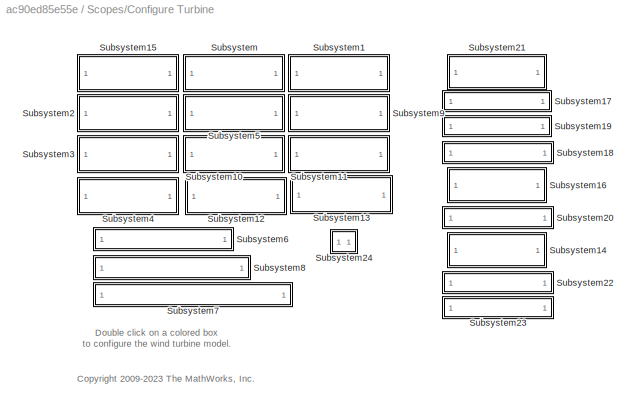
BLOCK [SubSystem] Scopes/Configure Turbine
BLOCK [SubSystem] Scopes/Configure Turbine/Subsystem
  OpenFcn = Select_Turbine_Systems('I_Pitch Test', WT_Configs)
BLOCK [SubSystem] Scopes/Configure Turbine/Subsystem1
  OpenFcn = Select_Turbine_Systems('H_Pitch Test', WT_Configs)
BLOCK [SubSystem] Scopes/Configure Turbine/Subsystem10
  OpenFcn = Select_Turbine_Systems('I_Pitch IM_Yaw Test', WT_Configs)
BLOCK [SubSystem] Scopes/Configure Turbine/Subsystem11
  OpenFcn = Select_Turbine_Systems('H_Pitch IM_Yaw Test', WT_Configs)
BLOCK [SubSystem] Scopes/Configure Turbine/Subsystem12
  OpenFcn = Select_Turbine_Systems('I_Pitch S_Yaw Test', WT_Configs)
BLOCK [SubSystem] Scopes/Configure Turbine/Subsystem13
  OpenFcn = Select_Turbine_Systems('H_Pitch S_Yaw Test', WT_Configs)
BLOCK [SubSystem] Scopes/Configure Turbine/Subsystem14
  OpenFcn = Compare_Yaw_Actuators;
BLOCK [SubSystem] Scopes/Configure Turbine/Subsystem15
BLOCK [SubSystem] Scopes/Configure Turbine/Subsystem16
  OpenFcn = Compare_Pitch_Actuators;
BLOCK [SubSystem] Scopes/Configure Turbine/Subsystem17
  OpenFcn = Pitch_Actuation_Linkage
BLOCK [SubSystem] Scopes/Configure Turbine/Subsystem18
  OpenFcn = Pitch_Actuation_Hydraulic_Testrig
BLOCK [SubSystem] Scopes/Configure Turbine/Subsystem19
  OpenFcn = Pitch_Control_Ideal_Testrig
BLOCK [SubSystem] Scopes/Configure Turbine/Subsystem2
  OpenFcn = Select_Turbine_Systems('IA_Yaw Test', WT_Configs)
BLOCK [SubSystem] Scopes/Configure Turbine/Subsystem20
  OpenFcn = Yaw_Actuation_Testrig
BLOCK [SubSystem] Scopes/Configure Turbine/Subsystem21
BLOCK [SubSystem] Scopes/Configure Turbine/Subsystem22
  OpenFcn = Generator_Testrig
BLOCK [SubSystem] Scopes/Configure Turbine/Subsystem23
  OpenFcn = Turbine_State_Machine_Testrig
BLOCK [SubSystem] Scopes/Configure Turbine/Subsystem24
  OpenFcn = Select_Turbine_Systems('H_Pitch S_Yaw Ge Gn Lift_Drag', WT_Configs)
BLOCK [SubSystem] Scopes/Configure Turbine/Subsystem3
  OpenFcn = Select_Turbine_Systems('IM_Yaw Test', WT_Configs)
BLOCK [SubSystem] Scopes/Configure Turbine/Subsystem4
  OpenFcn = Select_Turbine_Systems('S_Yaw Test', WT_Configs)
BLOCK [SubSystem] Scopes/Configure Turbine/Subsystem5
  OpenFcn = Select_Turbine_Systems('I_Pitch IA_Yaw Test', WT_Configs)
BLOCK [SubSystem] Scopes/Configure Turbine/Subsystem6
  OpenFcn = Select_Turbine_Systems('I_Pitch IA_Yaw Lift_Drag', WT_Configs)
BLOCK [SubSystem] Scopes/Configure Turbine/Subsystem7
  OpenFcn = Select_Turbine_Systems('I_Pitch IA_Yaw Ge Gn Lift_Drag', WT_Configs)
BLOCK [SubSystem] Scopes/Configure Turbine/Subsystem8
  OpenFcn = Select_Turbine_Systems('I_Pitch IA_Yaw Ge Lift_Drag', WT_Configs)
BLOCK [SubSystem] Scopes/Configure Turbine/Subsystem9
  OpenFcn = Select_Turbine_Systems('H_Pitch IA_Yaw Test', WT_Configs)
BLOCK [SubSystem] Scopes/Generator Scopes
  AncestorBlock = Generator_Lib/Generator Scopes
  LibrarySourceBlock = Generator_Lib/Generator Scopes
BLOCK [Product] Scopes/Generator Scopes/Divide
  Inputs = /*
  NameLocation = top
BLOCK [From] Scopes/Generator Scopes/From
  GotoTag = Vabc_Gen
  TagVisibility = global
BLOCK [From] Scopes/Generator Scopes/From1
  GotoTag = Iabc_Gen
  TagVisibility = global
BLOCK [From] Scopes/Generator Scopes/From2
  GotoTag = Geartrain_Input_Torque
  TagVisibility = global
BLOCK [From] Scopes/Generator Scopes/From_Gen_Spd_rpm
  GotoTag = Gen_Spd_rpm
  TagVisibility = global
BLOCK [From] Scopes/Generator Scopes/From_Gen_Torque_pu
  GotoTag = Gen_Torque_pu
  TagVisibility = global
BLOCK [From] Scopes/Generator Scopes/From_Gen_Torque_pu1
  GotoTag = Generator_Trip
  TagVisibility = global
BLOCK [From] Scopes/Generator Scopes/From_Rotor_Speed_Position
  GotoTag = Rotor_Speed_Position
  TagVisibility = global
BLOCK [Scope] Scopes/Generator Scopes/Geartrain Input Torque
  Floating = off
  NumInputPorts = 1
  ScopeSpecificationString = Simulink.scopes.TimeScopeBlockCfg('CurrentConfiguration', extmgr.ConfigurationSet(extmgr.Configuration('Core','General UI',true),extmgr.Configuration('Core','Source UI',true),extmgr.Configuration('Sources','WiredSimulink',true,'DataLogging',true,'DataLoggingVariableName','Geartrain_Input_Torque_DATA','DataLoggingSaveFormat','StructureWithTime','DataLoggingDecimation','1','DataLoggingDecimateData',...<+1710ch>
BLOCK [Scope] Scopes/Generator Scopes/Geartrain Ratio
  Floating = off
  NameLocation = top
  NumInputPorts = 1
  ScopeSpecificationString = Simulink.scopes.TimeScopeBlockCfg('CurrentConfiguration', extmgr.ConfigurationSet(extmgr.Configuration('Core','General UI',true),extmgr.Configuration('Core','Source UI',true),extmgr.Configuration('Sources','WiredSimulink',true,'DataLoggingVariableName','ScopeData4','DataLoggingSaveFormat','StructureWithTime','DataLoggingDecimation','1','DataLoggingDecimateData',true),extmgr.Configuration('Visuals'...<+1615ch>
BLOCK [Scope] Scopes/Generator Scopes/Gen Torque
  Floating = off
  NumInputPorts = 1
  ScopeSpecificationString = Simulink.scopes.TimeScopeBlockCfg('CurrentConfiguration', extmgr.ConfigurationSet(extmgr.Configuration('Core','General UI',true),extmgr.Configuration('Core','Source UI',true),extmgr.Configuration('Sources','WiredSimulink',true,'DataLoggingVariableName','ScopeData8','DataLoggingSaveFormat','StructureWithTime','DataLoggingDecimation','1','DataLoggingDecimateData',true),extmgr.Configuration('Visuals'...<+896ch>
BLOCK [Scope] Scopes/Generator Scopes/Generator Trip
  Floating = off
  NumInputPorts = 1
  ScopeSpecificationString = Simulink.scopes.TimeScopeBlockCfg('CurrentConfiguration', extmgr.ConfigurationSet(extmgr.Configuration('Core','General UI',true),extmgr.Configuration('Core','Source UI',true),extmgr.Configuration('Sources','WiredSimulink',true,'DataLogging',true,'DataLoggingVariableName','Generator_Trip_DATA','DataLoggingSaveFormat','StructureWithTime','DataLoggingDecimation','1','DataLoggingDecimateData',true),ex...<+924ch>
BLOCK [From] Scopes/Generator Scopes/Pitch_Angle2
  GotoTag = Geartrain_Input_Speed
  TagVisibility = global
BLOCK [Scope] Scopes/Generator Scopes/Power
  Floating = off
  NumInputPorts = 2
  ScopeSpecificationString = Simulink.scopes.TimeScopeBlockCfg('CurrentConfiguration', extmgr.ConfigurationSet(extmgr.Configuration('Core','General UI',true),extmgr.Configuration('Core','Source UI',true),extmgr.Configuration('Sources','WiredSimulink',true,'DataLogging',true,'DataLoggingVariableName','Generator_Power_DATA','DataLoggingSaveFormat','StructureWithTime','DataLoggingDecimation','1'),extmgr.Configuration('Visuals','...<+2278ch>
BLOCK [Scope] Scopes/Generator Scopes/Rotor Speed (RPM)
  Floating = off
  NumInputPorts = 1
  ScopeSpecificationString = Simulink.scopes.TimeScopeBlockCfg('CurrentConfiguration', extmgr.ConfigurationSet(extmgr.Configuration('Core','General UI',true),extmgr.Configuration('Core','Source UI',true),extmgr.Configuration('Sources','WiredSimulink',true,'DataLoggingVariableName','ScopeData6','DataLoggingSaveFormat','StructureWithTime','DataLoggingDecimation','1'),extmgr.Configuration('Visuals','Time Domain',true,'Serialized...<+1730ch>
BLOCK [Scope] Scopes/Generator Scopes/Rotor, Turbine Speed (rpm, pu)
  Floating = off
  NumInputPorts = 3
  ScopeSpecificationString = Simulink.scopes.TimeScopeBlockCfg('CurrentConfiguration', extmgr.ConfigurationSet(extmgr.Configuration('Core','General UI',true),extmgr.Configuration('Core','Source UI',true),extmgr.Configuration('Sources','WiredSimulink',true,'DataLogging',true,'DataLoggingVariableName','Generator_Speed_DATA','DataLoggingSaveFormat','StructureWithTime','DataLoggingDecimation','1','DataLoggingDecimateData',true),e...<+3046ch>
BLOCK [Saturate] Scopes/Generator Scopes/Saturation
  LowerLimit = eps
  NameLocation = top
  UpperLimit = inf
BLOCK [Selector] Scopes/Generator Scopes/Selector
  IndexOptions = Index vector (dialog)
  Indices = [2]
  InputPortWidth = 2
  OutputSizes = 1
BLOCK [Reference] Scopes/Generator Scopes/pu to MW//MVar  REF=Generator_Lib/Generator Scopes/pu to MW//MVar
  SourceBlock = Generator_Lib/Generator Scopes/pu to MW//MVar
  SourceType = SubSystem
BLOCK [Gain] Scopes/Generator Scopes/radps2pu
  Gain = WT_Params.Generator.radps2pu
BLOCK [Gain] Scopes/Generator Scopes/radps2rpm
  Gain = radps2rpm
BLOCK [Gain] Scopes/Generator Scopes/rpm2radps
  Gain = 1/radps2rpm
BLOCK [SubSystem] Scopes/Main Controller Scopes
  AncestorBlock = Main_Controller_Lib/Main Controller Scopes
  LibrarySourceBlock = Main_Controller_Lib/Main Controller Scopes
BLOCK [Scope] Scopes/Main Controller Scopes/Brake Signal Clutch Mode
  Floating = off
  NumInputPorts = 2
  ScopeSpecificationString = Simulink.scopes.TimeScopeBlockCfg('CurrentConfiguration', extmgr.ConfigurationSet(extmgr.Configuration('Core','General UI',true),extmgr.Configuration('Core','Source UI',true),extmgr.Configuration('Sources','WiredSimulink',true,'DataLoggingVariableName','ScopeData9','DataLoggingSaveFormat','StructureWithTime','DataLoggingDecimation','1','DataLoggingDecimateData',true),extmgr.Configuration('Visuals'...<+2368ch>
BLOCK [Demux] Scopes/Main Controller Scopes/Demux
  Outputs = 2
BLOCK [Scope] Scopes/Main Controller Scopes/Parking Brake, Turbine State
  Floating = off
  NumInputPorts = 2
  ScopeSpecificationString = Simulink.scopes.TimeScopeBlockCfg('CurrentConfiguration', extmgr.ConfigurationSet(extmgr.Configuration('Core','General UI',true),extmgr.Configuration('Core','Source UI',true),extmgr.Configuration('Sources','WiredSimulink',true,'DataLoggingVariableName','ScopeData7','DataLoggingSaveFormat','StructureWithTime','DataLoggingDecimation','1','DataLoggingDecimateData',true),extmgr.Configuration('Visuals'...<+2392ch>
BLOCK [Scope] Scopes/Main Controller Scopes/Wind
  Floating = off
  NumInputPorts = 2
  ScopeSpecificationString = Simulink.scopes.TimeScopeBlockCfg('CurrentConfiguration', extmgr.ConfigurationSet(extmgr.Configuration('Core','General UI',true),extmgr.Configuration('Core','Source UI',true),extmgr.Configuration('Sources','WiredSimulink',true,'DataLogging',true,'DataLoggingVariableName','Wind_Turbine_Wind_DATA','DataLoggingSaveFormat','StructureWithTime','DataLoggingDecimation','1'),extmgr.Configuration('Visuals'...<+2571ch>
BLOCK [From] Scopes/Main Controller Scopes/Yaw_Command1
  GotoTag = Parking_Brake
  TagVisibility = global
BLOCK [From] Scopes/Main Controller Scopes/Yaw_Command2
  GotoTag = Turbine_State
  TagVisibility = global
BLOCK [From] Scopes/Main Controller Scopes/Yaw_Command3
  GotoTag = Clutch_Mode
BLOCK [From] Scopes/Main Controller Scopes/Yaw_Command4
  GotoTag = Brake_Signal
  TagVisibility = global
BLOCK [From] Scopes/Main Controller Scopes/Yaw_Command5
  GotoTag = Wind_Speed_Direction
  TagVisibility = global
BLOCK [SubSystem] Scopes/Pitch Scopes
  AncestorBlock = Pitch_Controller_Lib/Pitch Scopes
  LibrarySourceBlock = Pitch_Controller_Lib/Pitch Scopes
BLOCK [Scope] Scopes/Pitch Scopes/AoA
  Floating = off
  NumInputPorts = 1
  ScopeSpecificationString = Simulink.scopes.TimeScopeBlockCfg('CurrentConfiguration', extmgr.ConfigurationSet(extmgr.Configuration('Core','General UI',true),extmgr.Configuration('Core','Source UI',true),extmgr.Configuration('Sources','WiredSimulink',true,'DataLoggingVariableName','ScopeData2','DataLoggingSaveFormat','StructureWithTime','DataLoggingDecimation','1','DataLoggingDecimateData',true),extmgr.Configuration('Visuals'...<+1670ch>
BLOCK [Demux] Scopes/Pitch Scopes/Demux
  Outputs = [2 1]
BLOCK [From] Scopes/Pitch Scopes/From_PA_Disp
  GotoTag = PA_Disp
BLOCK [From] Scopes/Pitch Scopes/From_PA_Disp1
  GotoTag = Inflow_Angle
  TagVisibility = global
BLOCK [From] Scopes/Pitch Scopes/From_PA_Disp_Comm
  GotoTag = PA_Disp_Comm
BLOCK [From] Scopes/Pitch Scopes/From_PA_Disp_Comm1
  GotoTag = AoA_Desired
  TagVisibility = global
BLOCK [From] Scopes/Pitch Scopes/From_Pitch_Angle
  GotoTag = Pitch_Angle
  TagVisibility = global
BLOCK [From] Scopes/Pitch Scopes/From_Pitch_Command
  GotoTag = Pitch_Command
  TagVisibility = global
BLOCK [From] Scopes/Pitch Scopes/From_Pitch_Pr_Fl
  GotoTag = Pitch_Pr_Fl
  TagVisibility = global
BLOCK [From] Scopes/Pitch Scopes/From_Pitch_Pr_Fl1
  GotoTag = Pitch_Force
  TagVisibility = global
BLOCK [Mux] Scopes/Pitch Scopes/Mux
  DisplayOption = bar
  Inputs = 2
BLOCK [Mux] Scopes/Pitch Scopes/Mux1
  DisplayOption = bar
  Inputs = 2
BLOCK [Mux] Scopes/Pitch Scopes/Mux2
  DisplayOption = bar
  Inputs = 2
BLOCK [Scope] Scopes/Pitch Scopes/PA Disp
  Floating = off
  NumInputPorts = 1
  ScopeSpecificationString = Simulink.scopes.TimeScopeBlockCfg('CurrentConfiguration', extmgr.ConfigurationSet(extmgr.Configuration('Core','General UI',true),extmgr.Configuration('Core','Source UI',true),extmgr.Configuration('Sources','WiredSimulink',true,'DataLoggingVariableName','ScopeData1','DataLoggingSaveFormat','StructureWithTime','DataLoggingDecimation','1','DataLoggingDecimateData',true),extmgr.Configuration('Visuals'...<+1670ch>
BLOCK [Scope] Scopes/Pitch Scopes/Pitch Actuator Force
  Floating = off
  NumInputPorts = 1
  ScopeSpecificationString = Simulink.scopes.TimeScopeBlockCfg('CurrentConfiguration', extmgr.ConfigurationSet(extmgr.Configuration('Core','General UI',true),extmgr.Configuration('Core','Source UI',true),extmgr.Configuration('Sources','WiredSimulink',true,'DataLogging',true,'DataLoggingVariableName','Pitch_Actuator_Force_DATA','DataLoggingSaveFormat','StructureWithTime','DataLoggingDecimation','1','DataLoggingDecimateData',tr...<+1710ch>
BLOCK [Scope] Scopes/Pitch Scopes/Pitch Command and Angle (deg)
  Floating = off
  NumInputPorts = 1
  ScopeSpecificationString = Simulink.scopes.TimeScopeBlockCfg('CurrentConfiguration', extmgr.ConfigurationSet(extmgr.Configuration('Core','General UI',true),extmgr.Configuration('Core','Source UI',true),extmgr.Configuration('Sources','WiredSimulink',true,'DataLogging',true,'DataLoggingVariableName','Blade_Pitch_DATA','DataLoggingSaveFormat','StructureWithTime','DataLoggingDecimation','1'),extmgr.Configuration('Visuals','Time...<+1869ch>
BLOCK [Scope] Scopes/Pitch Scopes/Pitch_Pressure_Flow
  Floating = off
  NumInputPorts = 2
  ScopeSpecificationString = Simulink.scopes.TimeScopeBlockCfg('CurrentConfiguration', extmgr.ConfigurationSet(extmgr.Configuration('Core','General UI',true),extmgr.Configuration('Core','Source UI',true),extmgr.Configuration('Sources','WiredSimulink',true,'DataLoggingVariableName','ScopeData3','DataLoggingSaveFormat','StructureWithTime','DataLoggingDecimation','1','DataLoggingDecimateData',true),extmgr.Configuration('Visuals'...<+2324ch>
BLOCK [Selector] Scopes/Pitch Scopes/Selector
  IndexOptions = Index vector (dialog)
  Indices = [1 ]
  InputPortWidth = 3
  OutputSizes = 1
BLOCK [Selector] Scopes/Pitch Scopes/Selector1
  IndexOptions = Index vector (dialog)
  Indices = [1 ]
  InputPortWidth = 3
  OutputSizes = 1
BLOCK [Terminator] Scopes/Pitch Scopes/Terminator
BLOCK [SubSystem] Scopes/Vis Off
  OpenFcn = set_param(bdroot,'SimMechanicsOpenEditorOnUpdate','off');
BLOCK [SubSystem] Scopes/Vis On
  OpenFcn = set_param(bdroot,'SimMechanicsOpenEditorOnUpdate','on');
BLOCK [SubSystem] Scopes/Yaw Ctrl Scopes
  AncestorBlock = Yaw_Controller_Lib/Yaw Ctrl Scopes
  LibrarySourceBlock = Yaw_Controller_Lib/Yaw Ctrl Scopes
BLOCK [Mux] Scopes/Yaw Ctrl Scopes/Mux1
  DisplayOption = bar
  Inputs = 2
BLOCK [Scope] Scopes/Yaw Ctrl Scopes/Nacelle Yaw
  Floating = off
  NumInputPorts = 1
  ScopeSpecificationString = Simulink.scopes.TimeScopeBlockCfg('CurrentConfiguration', extmgr.ConfigurationSet(extmgr.Configuration('Core','General UI',true),extmgr.Configuration('Core','Source UI',true),extmgr.Configuration('Sources','WiredSimulink',true,'DataLogging',true,'DataLoggingVariableName','Nacelle_Yaw_DATA','DataLoggingSaveFormat','StructureWithTime','DataLoggingDecimation','1'),extmgr.Configuration('Visuals','Time...<+1902ch>
BLOCK [Scope] Scopes/Yaw Ctrl Scopes/Nacelle Yaw and Yaw Rate
  Floating = off
  NumInputPorts = 2
  ScopeSpecificationString = Simulink.scopes.TimeScopeBlockCfg('CurrentConfiguration', extmgr.ConfigurationSet(extmgr.Configuration('Core','General UI',true),extmgr.Configuration('Core','Source UI',true),extmgr.Configuration('Sources','WiredSimulink',true,'DataLoggingVariableName','ScopeData7','DataLoggingSaveFormat','StructureWithTime','DataLoggingDecimation','1','DataLoggingDecimateData',true),extmgr.Configuration('Visuals'...<+2388ch>
BLOCK [Scope] Scopes/Yaw Ctrl Scopes/Torque Command
  Floating = off
  NumInputPorts = 1
  ScopeSpecificationString = Simulink.scopes.TimeScopeBlockCfg('CurrentConfiguration', extmgr.ConfigurationSet(extmgr.Configuration('Core','General UI',true),extmgr.Configuration('Core','Source UI',true),extmgr.Configuration('Sources','WiredSimulink',true,'DataLoggingVariableName','ScopeData1','DataLoggingSaveFormat','StructureWithTime','DataLoggingDecimation','1','DataLoggingDecimateData',true),extmgr.Configuration('Visuals'...<+973ch>
BLOCK [Scope] Scopes/Yaw Ctrl Scopes/Yaw Actuator Torque
  Floating = off
  NumInputPorts = 1
  ScopeSpecificationString = Simulink.scopes.TimeScopeBlockCfg('CurrentConfiguration', extmgr.ConfigurationSet(extmgr.Configuration('Core','General UI',true),extmgr.Configuration('Core','Source UI',true),extmgr.Configuration('Sources','WiredSimulink',true,'DataLogging',true,'DataLoggingVariableName','Yaw_Actuator_Torque_DATA','DataLoggingSaveFormat','StructureWithTime','DataLoggingDecimation','1'),extmgr.Configuration('Visual...<+1677ch>
BLOCK [From] Scopes/Yaw Ctrl Scopes/Yaw_Angle
  GotoTag = Yaw_Angle
  TagVisibility = global
BLOCK [From] Scopes/Yaw Ctrl Scopes/Yaw_Command1
  GotoTag = Yaw_Command
  TagVisibility = global
BLOCK [From] Scopes/Yaw Ctrl Scopes/Yaw_Command2
  GotoTag = Nacelle_Yaw_Rate
  TagVisibility = global
BLOCK [From] Scopes/Yaw Ctrl Scopes/Yaw_Command3
  GotoTag = Yaw_Torque_Command
  TagVisibility = global
BLOCK [From] Scopes/Yaw Ctrl Scopes/Yaw_Command4
  GotoTag = Yaw_Actuator_Torque
  TagVisibility = global
BLOCK [SubSystem] Scopes/tictoc1
  OpenFcn = open('Wind_Turbine_Demo_Script.html')
BLOCK [Reference] Solver Configuration  REF=nesl_utility/Solver
Configuration
  SourceBlock = nesl_utility/Solver\nConfiguration
  SourceType = Solver\nConfiguration
BLOCK [Reference] Tower  REF=Tower/Tower
  NameLocation = right
  SourceBlock = Tower/Tower
BLOCK [SubSystem] Turbine Input
  AttributesFormatString = %<ActiveVariant>
  LabelModeActiveChoice = Wind
  Variant = on
  VariantControlMode = label
BLOCK [SubSystem] Turbine Input/Commands
  VariantControl = Commands
BLOCK [BusCreator] Turbine Input/Commands/Bus Creator
  DisplayOption = bar
  InheritFromInputs = on
  Inputs = 6
BLOCK [Gain] Turbine Input/Commands/Gain1
BLOCK [Step] Turbine Input/Commands/Generator Trip Input
  Before = 1
  SampleTime = 0
  Time = 90
BLOCK [Outport] Turbine Input/Commands/Inputs
  VectorParamsAs1DForOutWhenUnconnected = off
BLOCK [Reference] Turbine Input/Commands/Mechanical Brake Command  REF=simulink/Sources/Ramp
  SourceBlock = simulink/Sources/Ramp
  SourceType = Ramp
BLOCK [Step] Turbine Input/Commands/Parking_Brake_Input
  After = 0
  Before = 1
  SampleTime = 0
  Time = 5
BLOCK [Gain] Turbine Input/Commands/Scalar2Vector
  Gain = [1 1 1]
BLOCK [SubSystem] Turbine Input/Commands/Signal Builder
  ClipboardFcn = sigbuilder_block('clipboard');
  CloseFcn = sigbuilder_block('close');
  ContinueFcn = sigbuilder_block('continue')
  CopyFcn = sigbuilder_block('copy');
  DeleteFcn = sigbuilder_block('delete');
  LoadFcn = sigbuilder_block('load');
  MaskHideContents = on
  ModelCloseFcn = sigbuilder_block('modelClose');
  NameChangeFcn = sigbuilder_block('namechange');
  OpenFcn = sigbuilder_block('open',[214.5 254.25 550.5 399.75 ]);
  PauseFcn = sigbuilder_block('pause')
  PreSaveFcn = sigbuilder_block('preSave');
  StartFcn = sigbuilder_block('start');
  StopFcn = sigbuilder_block('stop');
  Tag = STV Subsys
BLOCK [Demux] Turbine Input/Commands/Signal Builder/Demux
  DisplayOption = none
  Outputs = 1
  Tag = STV Demux
BLOCK [FromWorkspace] Turbine Input/Commands/Signal Builder/FromWs
  Tag = STV FromWs
  VariableName = tuvar
BLOCK [Outport] Turbine Input/Commands/Signal Builder/Signal 1
  Tag = STV Outport
  VectorParamsAs1DForOutWhenUnconnected = off
BLOCK [SubSystem] Turbine Input/Commands/Signal Builder2
  ClipboardFcn = sigbuilder_block('clipboard');
  CloseFcn = sigbuilder_block('close');
  ContinueFcn = sigbuilder_block('continue')
  CopyFcn = sigbuilder_block('copy');
  DeleteFcn = sigbuilder_block('delete');
  LoadFcn = sigbuilder_block('load');
  MaskHideContents = on
  ModelCloseFcn = sigbuilder_block('modelClose');
  NameChangeFcn = sigbuilder_block('namechange');
  OpenFcn = sigbuilder_block('open',[28.5 161.25 550.5 489 ]);
  PauseFcn = sigbuilder_block('pause')
  PreSaveFcn = sigbuilder_block('preSave');
  StartFcn = sigbuilder_block('start');
  StopFcn = sigbuilder_block('stop');
  Tag = STV Subsys
BLOCK [Demux] Turbine Input/Commands/Signal Builder2/Demux
  DisplayOption = none
  Outputs = 1
  Tag = STV Demux
BLOCK [FromWorkspace] Turbine Input/Commands/Signal Builder2/FromWs
  Tag = STV FromWs
  VariableName = tuvar
BLOCK [Outport] Turbine Input/Commands/Signal Builder2/Signal 1
  Tag = STV Outport
  VectorParamsAs1DForOutWhenUnconnected = off
BLOCK [Gain] Turbine Input/Commands/Torque Gain
  Gain = 120000*1.23
BLOCK [DiscretePulseGenerator] Turbine Input/Commands/Torque Input
  Amplitude = 10
  Period = 100
  PulseType = Time based
  PulseWidth = 10
BLOCK [Gain] Turbine Input/Commands/Yaw_Shutoff
BLOCK [Outport] Turbine Input/Inputs
  VectorParamsAs1DForOutWhenUnconnected = off
BLOCK [SubSystem] Turbine Input/Wind
  VariantControl = Wind
BLOCK [Clock] Turbine Input/Wind/Clock
BLOCK [Constant] Turbine Input/Wind/Constant
  Value = 19
BLOCK [FromWorkspace] Turbine Input/Wind/From Workspace
  VariableName = windDirData
BLOCK [FromWorkspace] Turbine Input/Wind/From Workspace1
  VariableName = windSpeedData
BLOCK [Outport] Turbine Input/Wind/Inputs
  VectorParamsAs1DForOutWhenUnconnected = off
BLOCK [SubSystem] Turbine Input/Wind/MATLAB Function
  ErrorFcn = Stateflow.Translate.translate
  LibrarySourceBlock = simulink/User-Defined\nFunctions/MATLAB Function
  PermitHierarchicalResolution = ExplicitOnly
  SFBlockType = MATLAB Function
  TreatAsAtomicUnit = on
BLOCK [Demux] Turbine Input/Wind/MATLAB Function/ Demux 
  Outputs = 1
BLOCK [S-Function] Turbine Input/Wind/MATLAB Function/ SFunction 
  EnableBusSupport = on
  FunctionName = sf_sfun
  PortCounts = [3 3]
  SFcnIsStateOwnerBlock = off
  SFunctionDeploymentMode = off
  Tag = Stateflow S-Function 2
BLOCK [Terminator] Turbine Input/Wind/MATLAB Function/ Terminator 
BLOCK [Inport] Turbine Input/Wind/MATLAB Function/dirVec
  Port = 3
BLOCK [Inport] Turbine Input/Wind/MATLAB Function/speedVec
  Port = 2
BLOCK [Inport] Turbine Input/Wind/MATLAB Function/t
BLOCK [Outport] Turbine Input/Wind/MATLAB Function/wd
  Port = 2
BLOCK [Outport] Turbine Input/Wind/MATLAB Function/ws
BLOCK [Mux] Turbine Input/Wind/Mux1
  DisplayOption = bar
  Inputs = 2
BLOCK [Scope] Turbine Input/Wind/Scope
  Floating = off
  NumInputPorts = 1
  ScopeSpecificationString = Simulink.scopes.TimeScopeBlockCfg('CurrentConfiguration', extmgr.ConfigurationSet(extmgr.Configuration('Core','General UI',true),extmgr.Configuration('Core','Source UI',true),extmgr.Configuration('Sources','WiredSimulink',true,'DataLoggingVariableName','ScopeData1'),extmgr.Configuration('Visuals','Time Domain',true,'SerializedDisplays',{struct('MinYLimReal','-0.15665','MaxYLimReal','1.97036','YLab...<+1418ch>
BLOCK [Reference] Yaw Controller  REF=Yaw_Controller_Lib/Speed Limit
  SourceBlock = Yaw_Controller_Lib/Speed Limit
BLOCK [Reference] powergui  REF=spspowerguiLib/powergui
  SourceBlock = spspowerguiLib/powergui
  SourceType = PSB option menu block
ANNOTATION (root): 1. Open Demo Script 2. Solver Settings: Desktop , Real Time 3. Explore simulation results using sscexplore Configure Systems: Default , Settings
ANNOTATION (root): <copyright redacted>
ANNOTATION (root): Wind Turbine
ANNOTATION Grid: <copyright redacted>
ANNOTATION Main Controller/Wind Input: <copyright redacted>
ANNOTATION Nacelle: <copyright redacted>
ANNOTATION Nacelle/Generator/Full: <copyright redacted>
ANNOTATION Nacelle/Pitch System: Variant Subsystems
ANNOTATION Scopes/Configure Turbine: <copyright redacted>
ANNOTATION Scopes/Configure Turbine: Double click on a colored box to configure the wind turbine model.
ANNOTATION Scopes/Generator Scopes: <copyright redacted>
ANNOTATION Scopes/Main Controller Scopes: <copyright redacted>
ANNOTATION Scopes/Pitch Scopes: <copyright redacted>
ANNOTATION Scopes/Yaw Ctrl Scopes: <copyright redacted>
ANNOTATION Turbine Input/Commands: <copyright redacted>
LINE Nacelle/PS-Simulink Converter:1 -> Nacelle/gear output:1
LINE Pitch Power On:1 -> Goto_PF_Pitch:1
LINE Turbine Input/Commands/Bus Creator:1 -> Turbine Input/Commands/Inputs:1
LINE Turbine Input/Commands/Gain1:1 -> Turbine Input/Commands/Bus Creator:4
LINE Turbine Input/Commands/Generator Trip Input:1 -> Turbine Input/Commands/Bus Creator:5
LINE Turbine Input/Commands/Mechanical Brake Command:1 -> Turbine Input/Commands/Gain1:1
LINE Turbine Input/Commands/Parking_Brake_Input:1 -> Turbine Input/Commands/Bus Creator:6
LINE Turbine Input/Commands/Scalar2Vector:1 -> Turbine Input/Commands/Bus Creator:1
LINE Turbine Input/Commands/Signal Builder2:1 -> Turbine Input/Commands/Yaw_Shutoff:1
LINE Turbine Input/Commands/Signal Builder:1 -> Turbine Input/Commands/Scalar2Vector:1
LINE Turbine Input/Commands/Torque Gain:1 -> Turbine Input/Commands/Bus Creator:3
LINE Turbine Input/Commands/Torque Input:1 -> Turbine Input/Commands/Torque Gain:1
LINE Turbine Input/Commands/Yaw_Shutoff:1 -> Turbine Input/Commands/Bus Creator:2
LINE Turbine Input/Wind/Clock:1 -> Turbine Input/Wind/MATLAB Function:1
NET Turbine Input/Wind/From Workspace1:1 -> Turbine Input/Wind/MATLAB Function:2, Turbine Input/Wind/Scope:1
LINE Turbine Input/Wind/From Workspace:1 -> Turbine Input/Wind/MATLAB Function:3
LINE Turbine Input/Wind/MATLAB Function:1 -> Turbine Input/Wind/Mux1:1
LINE Turbine Input/Wind/MATLAB Function:2 -> Turbine Input/Wind/Mux1:2
LINE Turbine Input/Wind/Mux1:1 -> Turbine Input/Wind/Inputs:1
NET Turbine Input:1 -> Blade Load:1, Main Controller:1
PLINE Blade Load:RConn1 -- Blades:RConn3
PLINE Blade Load:RConn2 -- Blades:RConn2
PLINE Blade Load:RConn3 -- Blades:RConn1
PLINE Blades:LConn1 -- Nacelle:LConn2
PLINE Blades:LConn2 -- Nacelle:LConn3
PLINE Blades:LConn3 -- Nacelle:LConn4
PLINE Blades:LConn4 -- Nacelle:LConn5
PLINE Blades:LConn5 -- Nacelle:LConn6
PLINE Blades:LConn6 -- Nacelle:LConn7
PLINE Grid/1 km line :LConn1 -- Grid/Line Resistance:RConn1
PLINE Grid/1 km line :LConn2 -- Grid/Line Resistance:RConn2
PLINE Grid/1 km line :LConn3 -- Grid/Line Resistance:RConn3
PLINE Grid/1 km line :RConn1 -- Grid/GNVa:RConn1
PLINE Grid/1 km line :RConn2 -- Grid/GNVb:RConn1
PLINE Grid/1 km line :RConn3 -- Grid/GNVc:RConn1
PLINE Grid/Grid:LConn1 -- Grid/Ground1:LConn1
PLINE Grid/Grid:RConn1 -- Grid/mGrid:LConn1
PLINE Grid/Grid:RConn2 -- Grid/mGrid:LConn2
PLINE Grid/Grid:RConn3 -- Grid/mGrid:LConn3
PLINE Grid/Line Resistance:LConn1 -- Grid/mGrid:RConn1
PLINE Grid/Line Resistance:LConn2 -- Grid/mGrid:RConn2
PLINE Grid/Line Resistance:LConn3 -- Grid/mGrid:RConn3
PLINE Grid:RConn1 -- Tower:RConn4
PLINE Grid:RConn2 -- Tower:RConn3
PLINE Grid:RConn3 -- Tower:RConn2
PLINE Main Controller:RConn1 -- Pitch Controller:LConn1
PLINE Main Controller:RConn2 -- Yaw Controller:LConn1
PLINE Main Controller:RConn3 -- Nacelle:RConn2
PLINE Main Controller:RConn4 -- Nacelle:RConn3
PLINE Nacelle/B1:RConn1 -- Nacelle/Pitch System:LConn2
PLINE Nacelle/B2:RConn1 -- Nacelle/Pitch System:LConn4
PLINE Nacelle/B3:RConn1 -- Nacelle/Pitch System:LConn6
PLINE Nacelle/BPA1:RConn1 -- Nacelle/Pitch System:LConn3
PLINE Nacelle/BPA2:RConn1 -- Nacelle/Pitch System:LConn5
PLINE Nacelle/BPA3:RConn1 -- Nacelle/Pitch System:LConn7
PLINE Nacelle/Br:RConn1 -- Nacelle/Geartrain:LConn1
PLINE Nacelle/G:RConn1 -- Nacelle/Generator:LConn1
PLINE Nacelle/Geartrain:LConn2 -- Nacelle/Hub Axis:RConn1
PLINE Nacelle/Geartrain:RConn1 -- Nacelle/Ideal Torque Sensor:LConn1
PLINE Nacelle/Generator:LConn2 -- Nacelle/Ideal Torque Sensor:RConn1
PLINE Nacelle/Generator:RConn1 -- Nacelle/GrVa:RConn1
PLINE Nacelle/Generator:RConn2 -- Nacelle/GrVb:RConn1
PLINE Nacelle/Generator:RConn3 -- Nacelle/GrVc:RConn1
PLINE Nacelle/Hub Axis:LConn1 -- Nacelle/Pitch System:RConn1
PLINE Nacelle/Hub Axis:RConn2 -- Nacelle/Nacelle:RConn1
PLINE Nacelle/Ideal Torque Sensor:RConn2 -- Nacelle/PS-Simulink Converter:LConn1
PLINE Nacelle/Nacelle/Geometry:RConn1 -- Nacelle/Nacelle/Transform Extrusion:RConn1
PLINE Nacelle/Nacelle/Inertia:RConn1 -- Nacelle/Nacelle/Transform Nacelle CG:RConn1
PLINE Nacelle/Nacelle/N:RConn1 -- Nacelle/Nacelle/Transform Hub Center:RConn1
PNET net1: Nacelle/Nacelle/Transform Extrusion:LConn1 -- Nacelle/Nacelle/Transform Hub Center:LConn1 -- Nacelle/Nacelle/Transform Nacelle Ctr:RConn1
PNET net2: Nacelle/Nacelle/Transform Nacelle CG:LConn1 -- Nacelle/Nacelle/Transform Nacelle Ctr:LConn1 -- Nacelle/Nacelle/YR:RConn1
PLINE Nacelle/Nacelle:LConn1 -- Nacelle/Yaw System:RConn1
PLINE Nacelle/PC:RConn1 -- Nacelle/Pitch System:LConn1
PLINE Nacelle/T:RConn1 -- Nacelle/Yaw System:LConn1
PLINE Nacelle/YC:RConn1 -- Nacelle/Yaw System:RConn2
PLINE Nacelle:LConn1 -- Pitch Controller:RConn1
PLINE Nacelle:RConn1 -- Yaw Controller:RConn1
PLINE Nacelle:RConn4 -- Tower:LConn1
PLINE Nacelle:RConn5 -- Tower:LConn2
PLINE Nacelle:RConn6 -- Tower:LConn3
PLINE Nacelle:RConn7 -- Tower:LConn4
PLINE Solver Configuration:RConn1 -- Tower:RConn1
note: NET lines group one-source signal fan-out (src -> all destinations, sorted); 1:1 wires keep LINE; PNET lines group multi-terminal physical nets as a canonical sorted terminal list (undirected conserving connections); 2-terminal nets keep the pairwise PLINE form
CHART Nacelle/Generator/Full/MATLAB Function states=1 transitions=1
  STATE_LABEL 'eML_blk_kernel()'
  STATE_LABEL 'SCRIPT:\nfunction [vibration_rms, vibration_kurtosis, vibration_crest_factor] = generator_vibration_sensor(rotor_speed, generator_torque, D, time)\n% Updated function with better kurtosis handling over a moving window\n\n% Convert degradation to health\ngenerator_health = max(0.01, min(1, 1 - D));\n\n% Parameters\ntorque_sensitivity = 0.05;\nspeed_sensitivity = 0.03;\nnoise_amplitude = 0.1;\nwear_factor = 1 ...<+887ch>'
CHART Turbine Input/Wind/MATLAB Function states=1 transitions=1
  STATE_LABEL 'eML_blk_kernel()'
  STATE_LABEL "SCRIPT:\nfunction [ws, wd] = fcn(t, speedVec, dirVec)\n%#codegen\n\n% Assume timeVec is simply a linear time vector (e.g., 0, 1, 2, ..., N-1)\nN = length(speedVec);\ntimeVec = (0:N-1)';\n\n% Make sure vectors are column vectors\nspeedVec = speedVec(:);\ndirVec = dirVec(:);\n\n% Find the index of the closest time point\n[~, idx] = min(abs(timeVec - t));\n\n% Lookup values safely\nws = speedVec(idx);\nwd = dirVec(id...<+4ch>"
CHART Nacelle/Generator/Full/MATLAB Function1 states=1 transitions=1
  STATE_LABEL 'eML_blk_kernel()'
  STATE_LABEL 'SCRIPT:\nfunction D = windTurbineGeneratorDegradation(torque, speed, vibration, temp, hum, cycleFactor)\n%#codegen\npersistent Dval\nif isempty(Dval)\n    Dval = 0;\nend\n\n% Parameters \nalpha1 = 1e-8;  % mechanical base wear\nalpha2 = 2e-6;  % vibration\nalpha3 = 1e-7;  % temperature aging\nalpha4 = 5e-8;  % humidity effect\nalpha5 = 3e-7;  % thermal cycling\n\n% Arrhenius parameters for electrical insulation\n...<+833ch>'
CHART Nacelle/Generator/Full/MATLAB Function2 states=1 transitions=1
  STATE_LABEL 'eML_blk_kernel()'
  STATE_LABEL "SCRIPT:\nfunction logToCSV(t, u, v, y,d)\n%#codegen\npersistent fid isHeaderWritten\n\nif isempty(fid)\n    fid = fopen('signal_data1.csv', 'w');  % Open file for writing\n    isHeaderWritten = false;\nend\n\n% Write header once\nif ~isHeaderWritten\n    fprintf(fid, 'Time (s),U,V,Y\\n');\n    isHeaderWritten = true;\nend\n\n% Write one row of data\nfprintf(fid, '%.4f,%.4f,%.4f,%.4f,%.4f\\n', t, u, v, y,d);\n"
CHART Nacelle/Generator/Full/MATLAB Function3 states=1 transitions=1
  STATE_LABEL 'eML_blk_kernel()'
  STATE_LABEL 'SCRIPT:\nfunction cycleFactor = simpleCycleFactor(tempData)\n%#codegen\n% Simple cycle factor calculation without rainflow counting\n% Works with a 1D temperature array\n\n% Parameters\ntempRangeThreshold = 5;  % Minimum temp change to count as cycle (°C)\ntempRangePower = 1.5;    % Power factor for temp range\nbaseCycleDamage = 0.01;  % Base damage per cycle\n\n% Find peaks and valleys (simplified cycle ide...<+856ch>'
CHART Main Controller/Wind Input/Turbine State Machine states=4 transitions=7
  STATE_LABEL 'Generating\nentry: parking_brake = 0;\n          generator_trip = 0;\n          pitch_brake = 0;\n          turbine_state = 2;'
  STATE_LABEL 'Startup\nentry: parking_brake = 0;\n          generator_trip = 1;\n          pitch_brake = 0;\n          turbine_state = 1;'
  STATE_LABEL 'Park\nentry: parking_brake = 1;\n          generator_trip = 1;\n          pitch_brake = 1;\n          turbine_state = 0;'
  STATE_LABEL 'Brake\nentry: parking_brake = 0;\n          generator_trip = 1;\n          pitch_brake = 1;\n          turbine_state = 3;'
CHART  states=0 transitions=0
CHART  states=0 transitions=0
CHART  states=0 transitions=0
CHART  states=0 transitions=0
CHART  states=0 transitions=0
CHART  states=0 transitions=0
